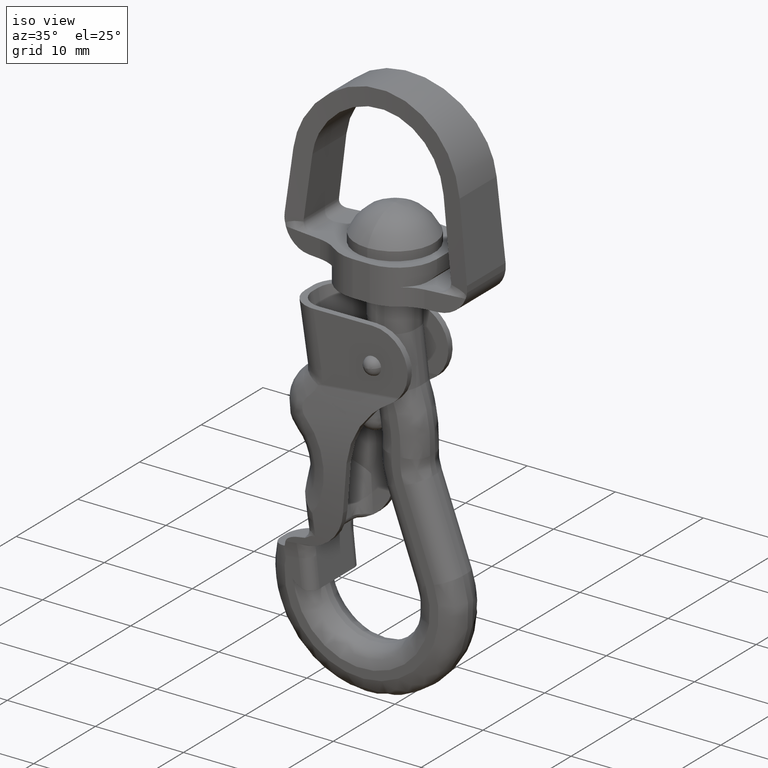
[diagram: clean part render]
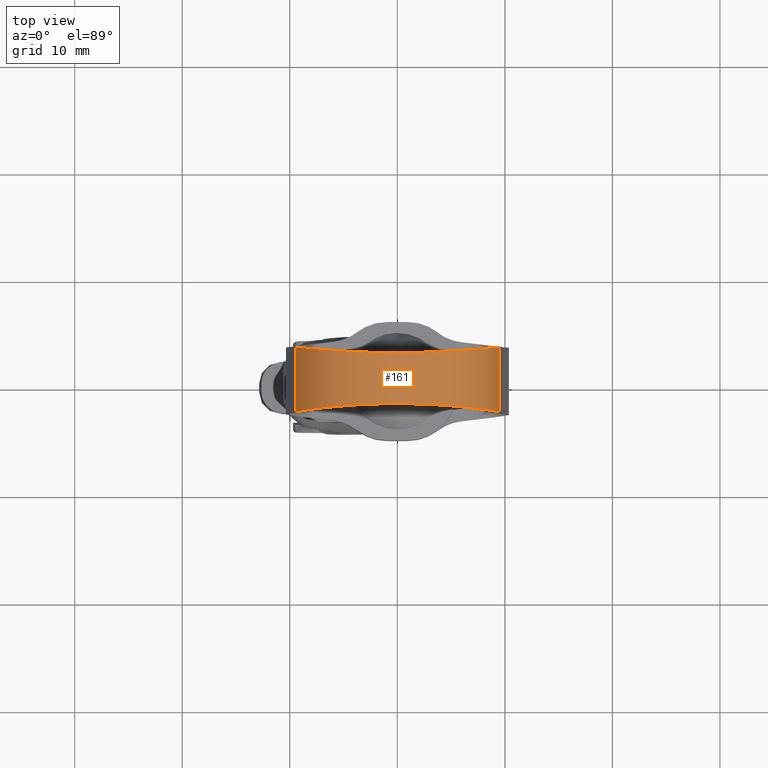
[diagram: tour spotlight — one face highlighted and labeled with its STEP entity id]
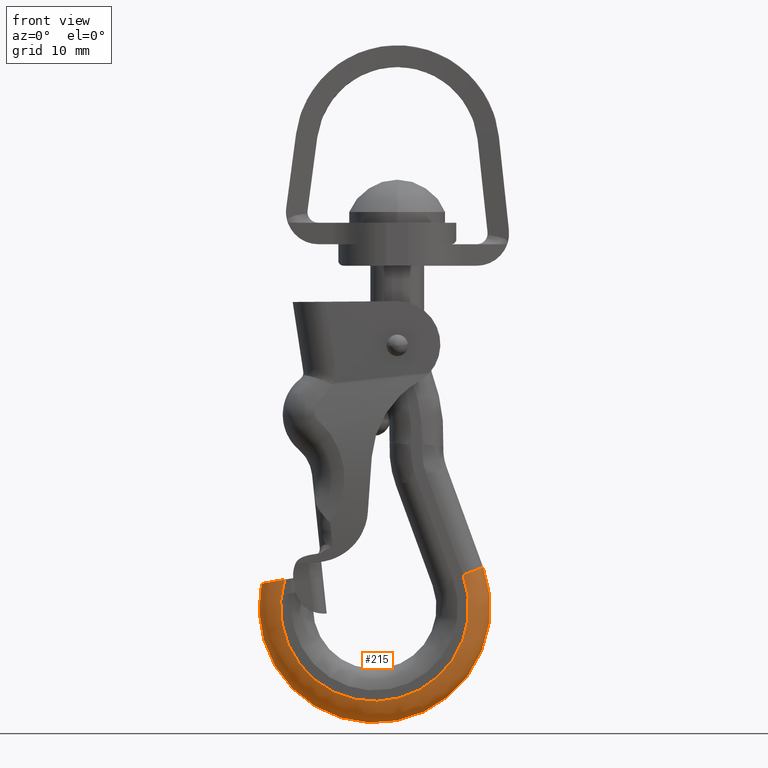
[diagram: tour spotlight — one face highlighted and labeled with its STEP entity id]
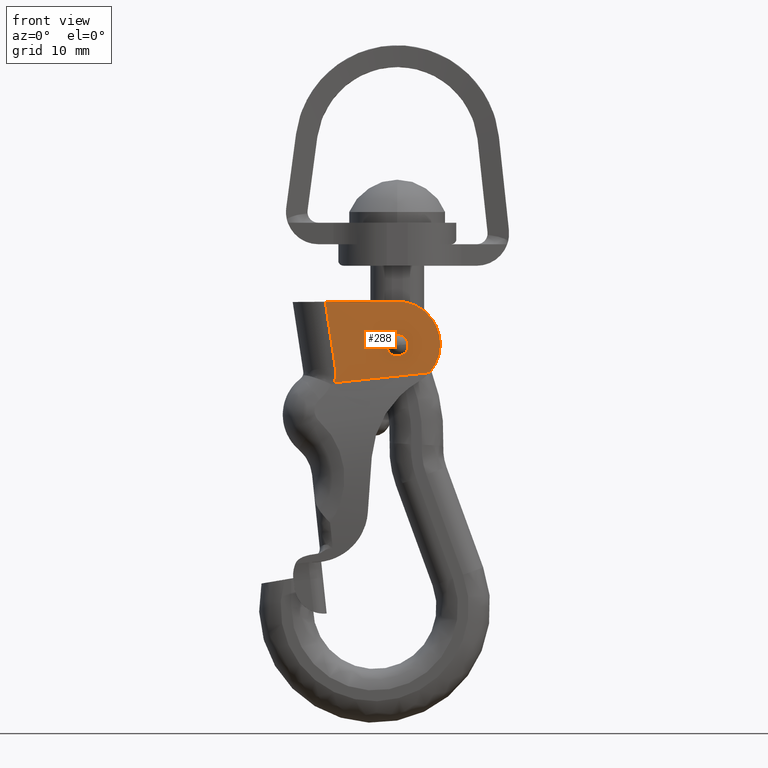
[diagram: tour spotlight — one face highlighted and labeled with its STEP entity id]
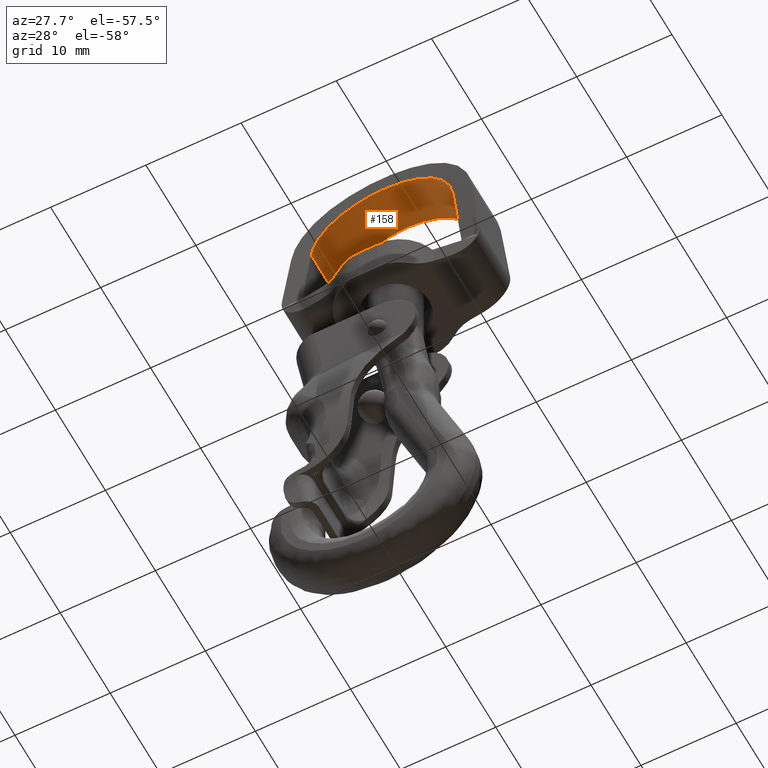
[diagram: tour spotlight — one face highlighted and labeled with its STEP entity id]
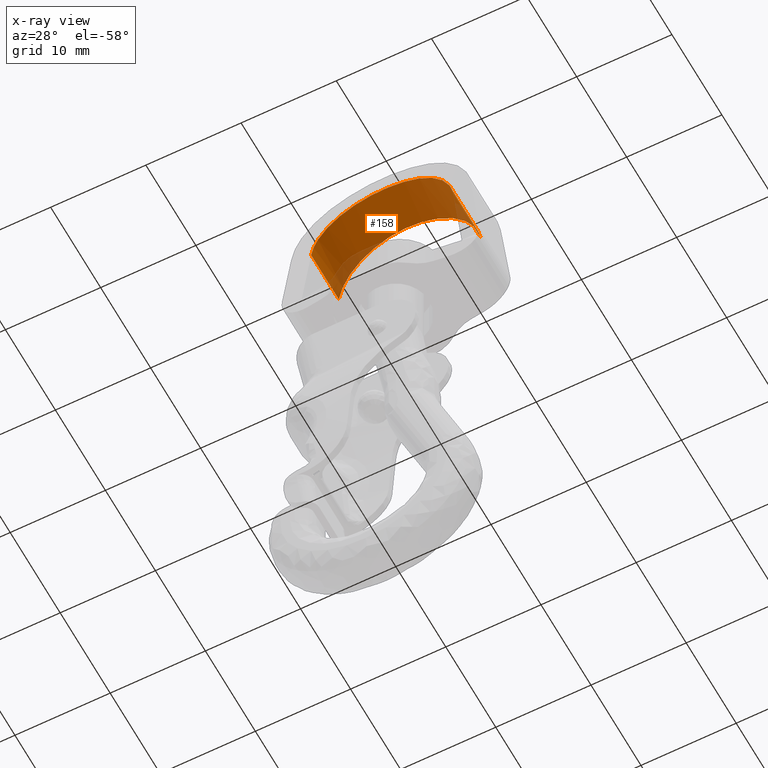
[diagram: x-ray of the same camera — body ghosted, this tour face saturated]
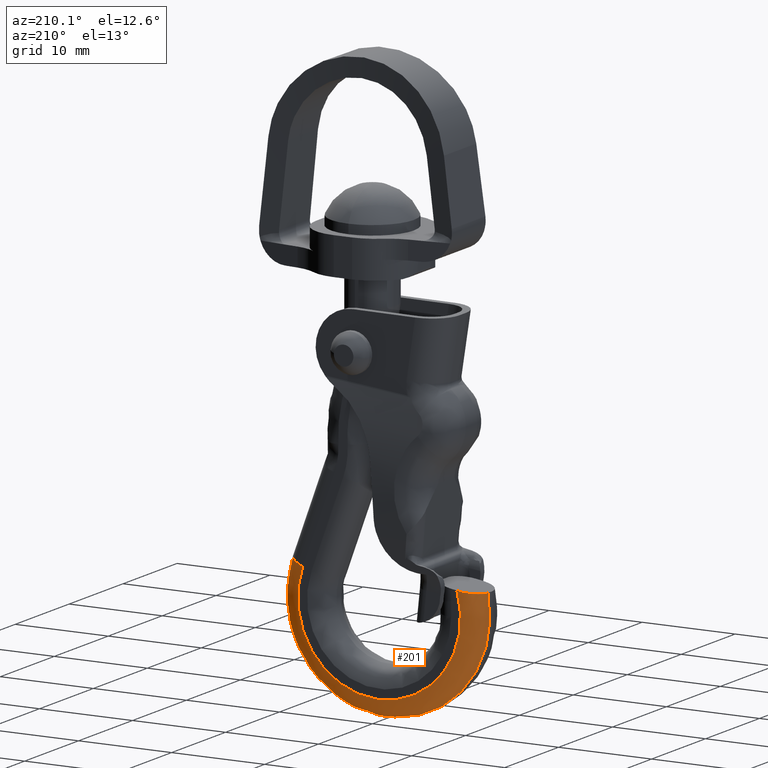
[diagram: tour spotlight — one face highlighted and labeled with its STEP entity id]
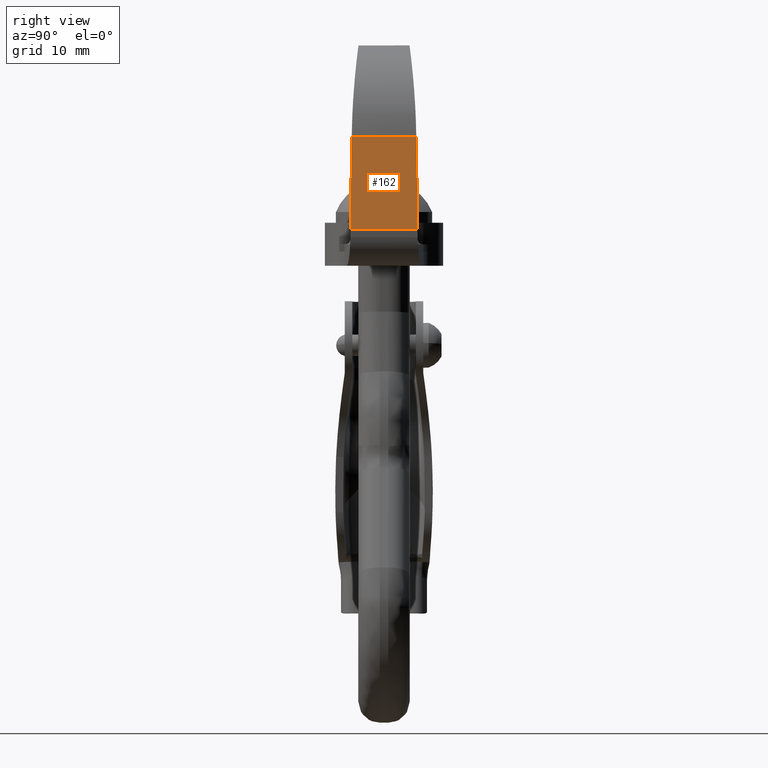
[diagram: tour spotlight — one face highlighted and labeled with its STEP entity id]
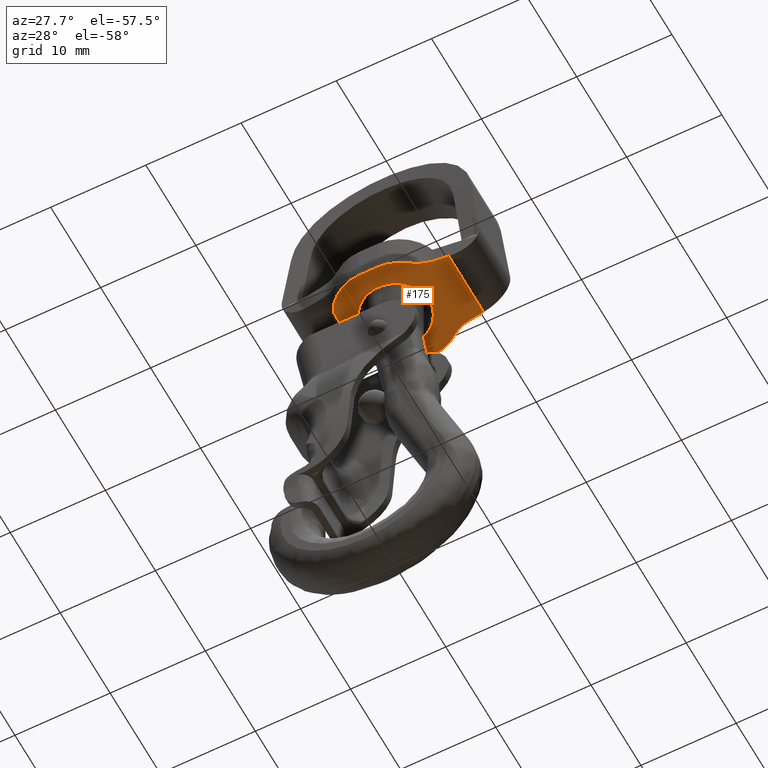
[diagram: tour spotlight — one face highlighted and labeled with its STEP entity id]
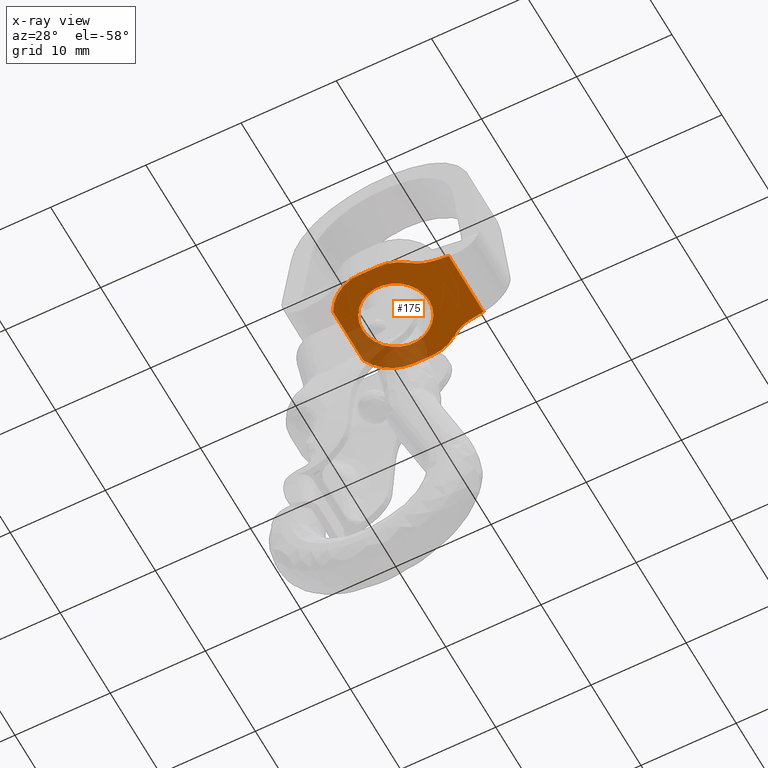
[diagram: x-ray of the same camera — body ghosted, this tour face saturated]
A machine part: a face-by-face anatomy tour. The part has 201 B-rep faces; the first image is the clean iso view, then the 7 largest visible faces are spotlighted one at a time (largest first), each with its STEP entity span.

Face 1 — top view, entity #161. In plain terms, the highlighted cylindrical surface (partial cylindrical patch) has radius 9.5 mm, axis along (-0, -1, -0).
Definition (entity closure, byte-faithful):
#161=ADVANCED_FACE('',(#471),#470,.T.);
#470=CYLINDRICAL_SURFACE('',#2463,9.50000000000E+00);
#471=FACE_OUTER_BOUND('',#2464,.T.);
#2460=CARTESIAN_POINT('',(1.70530256582E-13,-9.96370609615E+02,1.10000000000E+01));
#2461=DIRECTION('',(-0.00000000000E+00,-1.00000000000E+00,-0.00000000000E+00));
#2462=DIRECTION('',(-0.00000000000E+00,0.00000000000E+00,-1.00000000000E+00));
#2463=AXIS2_PLACEMENT_3D('',#2460,#2461,#2462);
#2464=EDGE_LOOP('',(#5614,#5615,#5616,#5617));
#5614=ORIENTED_EDGE('',*,*,#6655,.F.);
#5615=ORIENTED_EDGE('',*,*,#6687,.F.);
#5616=ORIENTED_EDGE('',*,*,#6688,.F.);
#5617=ORIENTED_EDGE('',*,*,#6689,.T.);
#6655=EDGE_CURVE('',#7363,#7370,#7371,.T.);
#6687=EDGE_CURVE('',#7586,#7363,#7587,.T.);
#6688=EDGE_CURVE('',#7593,#7586,#7594,.T.);
#6689=EDGE_CURVE('',#7593,#7370,#7600,.T.);
#7363=VERTEX_POINT('',#10973);
#7370=VERTEX_POINT('',#10977);
#7371=(BOUNDED_CURVE() B_SPLINE_CURVE(3,(#10978,#10979,#10980,#10981,#10982,#10983,#10984,#10985,#10986,#10987,#10988,#10989,#10990,#10991,#10992,#10993,#10994,#10995,#10996,#10997,#10998,#10999,#11000,#11001,#11002,#11003,#11004,#11005,#11006,#11007,#11008,#11009,#11010,#11011,#11012,#11013,#11014,#11015,#11016,#11017,#11018,#11019,#11020,#11021,#11022,#11023),.UNSPECIFIED.,.F.,.F.) B_SPLINE_CURVE_WITH_KNOTS((4,2,2,2,2,2,2,2,2,2,2,2,2,2,2,2,2,2,2,2,2,2,4),(0.00000000000E+00,1.71468884432E-03,2.57203326647E-03,3.42937768863E-03,5.14406653295E-03,6.00141095511E-03,6.85875537726E-03,7.71609979942E-03,8.57344422158E-03,1.02881330659E-02,1.20028219102E-02,1.37175107545E-02,1.45748551767E-02,1.54321995988E-02,1.71468884432E-02,1.88615772875E-02,1.97189217096E-02,2.05762661318E-02,2.22909549761E-02,2.40056438204E-02,2.48629882426E-02,2.57203326647E-02,2.74350215091E-02),.UNSPECIFIED.) CURVE() GEOMETRIC_REPRESENTATION_ITEM() RATIONAL_B_SPLINE_CURVE((1.00000000000E+00,1.00000000000E+00,1.00000000000E+00,1.00000000000E+00,1.00000000000E+00,1.00000000000E+00,1.00000000000E+00,1.00000000000E+00,1.00000000000E+00,1.00000000000E+00,1.00000000000E+00,1.00000000000E+00,1.00000000000E+00,1.00000000000E+00,1.00000000000E+00,1.00000000000E+00,1.00000000000E+00,1.00000000000E+00,1.00000000000E+00,1.00000000000E+00,1.00000000000E+00,1.00000000000E+00,1.00000000000E+00,1.00000000000E+00,1.00000000000E+00,1.00000000000E+00,1.00000000000E+00,1.00000000000E+00,1.00000000000E+00,1.00000000000E+00,1.00000000000E+00,1.00000000000E+00,1.00000000000E+00,1.00000000000E+00,1.00000000000E+00,1.00000000000E+00,1.00000000000E+00,1.00000000000E+00,1.00000000000E+00,1.00000000000E+00,1.00000000000E+00,1.00000000000E+00,1.00000000000E+00,1.00000000000E+00,1.00000000000E+00,1.00000000000E+00)) REPRESENTATION_ITEM('') );
#7586=VERTEX_POINT('',#11213);
#7587=LINE('',#11214,#11215);
#7593=VERTEX_POINT('',#11217);
#7594=(BOUNDED_CURVE() B_SPLINE_CURVE(3,(#11218,#11219,#11220,#11221,#11222,#11223,#11224,#11225,#11226,#11227,#11228,#11229,#11230,#11231,#11232,#11233,#11234,#11235,#11236,#11237,#11238,#11239,#11240,#11241,#11242,#11243,#11244,#11245,#11246,#11247,#11248,#11249,#11250,#11251,#11252,#11253,#11254,#11255,#11256,#11257,#11258,#11259,#11260,#11261),.UNSPECIFIED.,.F.,.F.) B_SPLINE_CURVE_WITH_KNOTS((4,2,2,2,2,2,2,2,2,2,2,2,2,2,2,2,2,2,2,2,2,4),(3.87895961445E-18,1.71469677414E-03,2.57204516121E-03,3.42939354828E-03,5.14409032241E-03,6.00143870948E-03,6.85878709655E-03,7.71613548362E-03,8.57348387069E-03,1.02881806448E-02,1.20028774190E-02,1.37175741931E-02,1.54322709672E-02,1.71469677414E-02,1.88616645155E-02,1.97190129026E-02,2.05763612897E-02,2.22910580638E-02,2.31484064509E-02,2.40057548379E-02,2.57204516121E-02,2.74351483862E-02),.UNSPECIFIED.) CURVE() GEOMETRIC_REPRESENTATION_ITEM() RATIONAL_B_SPLINE_CURVE((1.00000000000E+00,1.00000000000E+00,1.00000000000E+00,1.00000000000E+00,1.00000000000E+00,1.00000000000E+00,1.00000000000E+00,1.00000000000E+00,1.00000000000E+00,1.00000000000E+00,1.00000000000E+00,1.00000000000E+00,1.00000000000E+00,1.00000000000E+00,1.00000000000E+00,1.00000000000E+00,1.00000000000E+00,1.00000000000E+00,1.00000000000E+00,1.00000000000E+00,1.00000000000E+00,1.00000000000E+00,1.00000000000E+00,1.00000000000E+00,1.00000000000E+00,1.00000000000E+00,1.00000000000E+00,1.00000000000E+00,1.00000000000E+00,1.00000000000E+00,1.00000000000E+00,1.00000000000E+00,1.00000000000E+00,1.00000000000E+00,1.00000000000E+00,1.00000000000E+00,1.00000000000E+00,1.00000000000E+00,1.00000000000E+00,1.00000000000E+00,1.00000000000E+00,1.00000000000E+00,1.00000000000E+00,1.00000000000E+00)) REPRESENTATION_ITEM('') );
#7600=LINE('',#11262,#11263);
#10973=CARTESIAN_POINT('',(-9.41739461082E+00,2.99568752136E+00,1.22500714956E+01));
#10977=CARTESIAN_POINT('',(9.44589185730E+00,2.99949311255E+00,1.20124855655E+01));
#10978=CARTESIAN_POINT('',(-9.41739461082E+00,2.99568752136E+00,1.22500714956E+01));
#10979=CARTESIAN_POINT('',(-9.34110534533E+00,2.98551533350E+00,1.28247955176E+01));
#10980=CARTESIAN_POINT('',(-9.21386118481E+00,2.96862461537E+00,1.33834840825E+01));
#10981=CARTESIAN_POINT('',(-8.94990255391E+00,2.93487115063E+00,1.41985626228E+01));
#10982=CARTESIAN_POINT('',(-8.84965530253E+00,2.92221561368E+00,1.44664052478E+01));
#10983=CARTESIAN_POINT('',(-8.62427028081E+00,2.89436924000E+00,1.49942867247E+01));
#10984=CARTESIAN_POINT('',(-8.49840569904E+00,2.87909282235E+00,1.52556079053E+01));
#10985=CARTESIAN_POINT('',(-8.08791319733E+00,2.83058655183E+00,1.60167770919E+01));
#10986=CARTESIAN_POINT('',(-7.77207370907E+00,2.79484369708E+00,1.64927916658E+01));
#10987=CARTESIAN_POINT('',(-7.23680559954E+00,2.73883519680E+00,1.71611782331E+01));
#10988=CARTESIAN_POINT('',(-7.04806688455E+00,2.71976459158E+00,1.73763200296E+01));
#10989=CARTESIAN_POINT('',(-6.64946818580E+00,2.68127376269E+00,1.77909702382E+01));
#10990=CARTESIAN_POINT('',(-6.43911585116E+00,2.66181754312E+00,1.79907702253E+01));
#10991=CARTESIAN_POINT('',(-6.00344954213E+00,2.62363286604E+00,1.83682884636E+01));
#10992=CARTESIAN_POINT('',(-5.77743674028E+00,2.60483262476E+00,1.85468140530E+01));
#10993=CARTESIAN_POINT('',(-5.30899983134E+00,2.56827947831E+00,1.88833811546E+01));
#10994=CARTESIAN_POINT('',(-5.06588246233E+00,2.55048696783E+00,1.90417378128E+01));
#10995=CARTESIAN_POINT('',(-4.32228355595E+00,2.50009102409E+00,1.94793109125E+01));
#10996=CARTESIAN_POINT('',(-3.80492685682E+00,2.47022830642E+00,1.97236383529E+01));
#10997=CARTESIAN_POINT('',(-2.72713405487E+00,2.42077382056E+00,2.01182275879E+01));
#10998=CARTESIAN_POINT('',(-2.16317827642E+00,2.40121414050E+00,2.02681552911E+01));
#10999=CARTESIAN_POINT('',(-1.03401231894E+00,2.37587457819E+00,2.04609122858E+01));
#11000=CARTESIAN_POINT('',(-4.64074534652E-01,2.36979781455E+00,2.05060892360E+01));
#11001=CARTESIAN_POINT('',(3.98982624320E-01,2.37114589761E+00,2.04959774273E+01));
#11002=CARTESIAN_POINT('',(6.89180023793E-01,2.37336279496E+00,2.04793737485E+01));
#11003=CARTESIAN_POINT('',(1.26403092142E+00,2.38124247601E+00,2.04199639913E+01));
#11004=CARTESIAN_POINT('',(1.54922294418E+00,2.38689111829E+00,2.03772637598E+01));
#11005=CARTESIAN_POINT('',(2.39814266771E+00,2.40872724962E+00,2.02104061339E+01));
#11006=CARTESIAN_POINT('',(2.95689392893E+00,2.42998984163E+00,2.00462718540E+01));
#11007=CARTESIAN_POINT('',(4.02265301642E+00,2.48225006473E+00,1.96253416670E+01));
#11008=CARTESIAN_POINT('',(4.53410827301E+00,2.51332215674E+00,1.93680758066E+01));
#11009=CARTESIAN_POINT('',(5.26858081225E+00,2.56523559119E+00,1.89104528226E+01));
#11010=CARTESIAN_POINT('',(5.50707871021E+00,2.58337541053E+00,1.87462401045E+01));
#11011=CARTESIAN_POINT('',(5.96405504374E+00,2.62027955222E+00,1.84001485872E+01));
#11012=CARTESIAN_POINT('',(6.18367283417E+00,2.63912304649E+00,1.82175834577E+01));
#11013=CARTESIAN_POINT('',(6.81635219101E+00,2.69613214643E+00,1.76417336263E+01));
#11014=CARTESIAN_POINT('',(7.20373260446E+00,2.73481623689E+00,1.72201877684E+01));
#11015=CARTESIAN_POINT('',(7.90510272266E+00,2.80959812216E+00,1.63003632192E+01));
#11016=CARTESIAN_POINT('',(8.20888147478E+00,2.84456816264E+00,1.58156010388E+01));
#11017=CARTESIAN_POINT('',(8.59700647187E+00,2.89102135386E+00,1.50525198125E+01));
#11018=CARTESIAN_POINT('',(8.71505154974E+00,2.90550726101E+00,1.47921315561E+01));
#11019=CARTESIAN_POINT('',(8.92809308467E+00,2.93208744056E+00,1.42590702854E+01));
#11020=CARTESIAN_POINT('',(9.02341122469E+00,2.94422369348E+00,1.39852265495E+01));
#11021=CARTESIAN_POINT('',(9.27058067197E+00,2.97607168231E+00,1.31541691510E+01));
#11022=CARTESIAN_POINT('',(9.38409973902E+00,2.99122855471E+00,1.25889695044E+01));
#11023=CARTESIAN_POINT('',(9.44589185730E+00,2.99949311255E+00,1.20124855655E+01));
#11213=CARTESIAN_POINT('',(-9.41739461082E+00,-2.99568752136E+00,1.22500714956E+01));
#11214=CARTESIAN_POINT('',(-9.41739461082E+00,-2.99568752136E+00,1.22500714956E+01));
#11215=VECTOR('',#11216,5.99137504272E+00);
#11216=DIRECTION('',(0.00000000000E+00,1.00000000000E+00,0.00000000000E+00));
#11217=CARTESIAN_POINT('',(9.44589185730E+00,-2.99949311255E+00,1.20124855655E+01));
#11218=CARTESIAN_POINT('',(9.44589185730E+00,-2.99949311255E+00,1.20124855655E+01));
#11219=CARTESIAN_POINT('',(9.38409854350E+00,-2.99122839481E+00,1.25889806579E+01));
#11220=CARTESIAN_POINT('',(9.27095451925E+00,-2.97612667339E+00,1.31507462550E+01));
#11221=CARTESIAN_POINT('',(9.02756864112E+00,-2.94475606027E+00,1.39723023429E+01));
#11222=CARTESIAN_POINT('',(8.93408219273E+00,-2.93284484272E+00,1.42426165119E+01));
#11223=CARTESIAN_POINT('',(8.72202139631E+00,-2.90636728904E+00,1.47760732557E+01));
#11224=CARTESIAN_POINT('',(8.60275051337E+00,-2.89171778570E+00,1.50405191810E+01));
#11225=CARTESIAN_POINT('',(8.21149810901E+00,-2.84486391381E+00,1.58118338910E+01));
#11226=CARTESIAN_POINT('',(7.90770131654E+00,-2.80991372364E+00,1.62956772610E+01));
#11227=CARTESIAN_POINT('',(7.38936379228E+00,-2.75459008398E+00,1.69773562037E+01));
#11228=CARTESIAN_POINT('',(7.20607851535E+00,-2.73566377878E+00,1.71971886619E+01));
#11229=CARTESIAN_POINT('',(6.81799932357E+00,-2.69728674951E+00,1.76217520419E+01));
#11230=CARTESIAN_POINT('',(6.61271411788E+00,-2.67779902051E+00,1.78267835879E+01));
#11231=CARTESIAN_POINT('',(6.18698403539E+00,-2.63940563278E+00,1.82148590220E+01));
#11232=CARTESIAN_POINT('',(5.96582018205E+00,-2.62042468494E+00,1.83987738524E+01));
#11233=CARTESIAN_POINT('',(5.50690070120E+00,-2.58335845890E+00,1.87464126943E+01));
#11234=CARTESIAN_POINT('',(5.26822816113E+00,-2.56520944301E+00,1.89106874300E+01));
#11235=CARTESIAN_POINT('',(4.53375349421E+00,-2.51329952790E+00,1.93682670574E+01));
#11236=CARTESIAN_POINT('',(4.02229798037E+00,-2.48222999430E+00,1.96255066078E+01));
#11237=CARTESIAN_POINT('',(2.95653966126E+00,-2.42997513264E+00,2.00463870421E+01));
#11238=CARTESIAN_POINT('',(2.39671032461E+00,-2.40870176686E+00,2.02105975586E+01));
#11239=CARTESIAN_POINT('',(1.27055067206E+00,-2.37971170704E+00,2.04321274778E+01));
#11240=CARTESIAN_POINT('',(7.02085591931E-01,-2.37175772018E+00,2.04913880465E+01));
#11241=CARTESIAN_POINT('',(-4.45627296532E-01,-2.36969227253E+00,2.05068810627E+01));
#11242=CARTESIAN_POINT('',(-1.02735296259E+00,-2.37574774154E+00,2.04618722182E+01));
#11243=CARTESIAN_POINT('',(-2.16418850758E+00,-2.40121431743E+00,2.02681588294E+01));
#11244=CARTESIAN_POINT('',(-2.72749777531E+00,-2.42078773429E+00,2.01181194886E+01));
#11245=CARTESIAN_POINT('',(-3.80529504757E+00,-2.47024797829E+00,1.97234784761E+01));
#11246=CARTESIAN_POINT('',(-4.32265324731E+00,-2.50011348858E+00,1.94791235117E+01));
#11247=CARTESIAN_POINT('',(-5.06625253365E+00,-2.55051334543E+00,1.90415049537E+01));
#11248=CARTESIAN_POINT('',(-5.30957035138E+00,-2.56832465016E+00,1.88829621817E+01));
#11249=CARTESIAN_POINT('',(-5.77647142118E+00,-2.60475664643E+00,1.85475166773E+01));
#11250=CARTESIAN_POINT('',(-6.00097106505E+00,-2.62342973391E+00,1.83701941571E+01));
#11251=CARTESIAN_POINT('',(-6.64824193448E+00,-2.68011898212E+00,1.78100324324E+01));
#11252=CARTESIAN_POINT('',(-7.04500377367E+00,-2.71881371245E+00,1.73992355023E+01));
#11253=CARTESIAN_POINT('',(-7.58654822104E+00,-2.77540791294E+00,1.67251514728E+01));
#11254=CARTESIAN_POINT('',(-7.75744970893E+00,-2.79396971071E+00,1.64912806464E+01));
#11255=CARTESIAN_POINT('',(-8.07445834404E+00,-2.82940733396E+00,1.60135128976E+01));
#11256=CARTESIAN_POINT('',(-8.22146806432E+00,-2.84637694139E+00,1.57685298285E+01));
#11257=CARTESIAN_POINT('',(-8.62851762004E+00,-2.89445057104E+00,1.50155123102E+01));
#11258=CARTESIAN_POINT('',(-8.85492762900E+00,-2.92273613434E+00,1.44893938786E+01));
#11259=CARTESIAN_POINT('',(-9.21331185388E+00,-2.96854476046E+00,1.33875714938E+01));
#11260=CARTESIAN_POINT('',(-9.34110678463E+00,-2.98551552541E+00,1.28247846746E+01));
#11261=CARTESIAN_POINT('',(-9.41739461082E+00,-2.99568752136E+00,1.22500714956E+01));
#11262=CARTESIAN_POINT('',(9.44589185730E+00,-2.99949311255E+00,1.20124855655E+01));
#11263=VECTOR('',#11264,5.99898622511E+00);
#11264=DIRECTION('',(0.00000000000E+00,1.00000000000E+00,0.00000000000E+00));

Face 2 — front view, entity #215. In plain terms, the highlighted face is a freeform B-spline surface patch.
Definition (entity closure, byte-faithful):
#215=ADVANCED_FACE('',(#1013),#1012,.T.);
#1012=( BOUNDED_SURFACE() B_SPLINE_SURFACE( 2,2,((#2981,#2982,#2983,#2984,#2985,#2986,#2987,#2988,#2989),(#2990,#2991,#2992,#2993,#2994,#2995,#2996,#2997,#2998),(#2999,#3000,#3001,#3002,#3003,#3004,#3005,#3006,#3007),(#3008,#3009,#3010,#3011,#3012,#3013,#3014,#3015,#3016),(#3017,#3018,#3019,#3020,#3021,#3022,#3023,#3024,#3025)), .UNSPECIFIED.,.F.,.F.,.F.) B_SPLINE_SURFACE_WITH_KNOTS((3,2,3),(3,2,2,2,3),(-1.57079759117E+00,-1.04707379885E+00,3.71257042375E-04),(1.23993616211E+00,1.57079632679E+00,3.14159265359E+00,4.71238898038E+00,5.06165581110E+00), .UNSPECIFIED. ) GEOMETRIC_REPRESENTATION_ITEM() RATIONAL_B_SPLINE_SURFACE(((8.42112599181E-01,8.75423577591E-01,9.32981760490E-01,6.59717729566E-01,9.32981760490E-01,6.59717729566E-01,9.32981760490E-01,8.72221456686E-01,8.38481280675E-01),(8.42112453143E-01,8.75423425777E-01,9.32981598694E-01,6.59717615159E-01,9.32981598694E-01,6.59717615159E-01,9.32981598694E-01,8.72221305427E-01,8.38481135267E-01),(9.02603496491E-01,9.38307279588E-01,1.00000000000E+00,7.07106781187E-01,1.00000000000E+00,7.07106781187E-01,1.00000000000E+00,9.34875142926E-01,8.98711331971E-01),(7.81621701870E-01,8.12539875593E-01,8.65963520979E-01,6.12328677945E-01,8.65963520979E-01,6.12328677945E-01,8.65963520979E-01,8.09567770445E-01,7.78251229378E-01),(9.02603496491E-01,9.38307279588E-01,1.00000000000E+00,7.07106781187E-01,1.00000000000E+00,7.07106781187E-01,1.00000000000E+00,9.34875142926E-01,8.98711331971E-01))) REPRESENTATION_ITEM('') SURFACE() );
#1013=FACE_OUTER_BOUND('',#3026,.T.);
#2981=CARTESIAN_POINT('',(-1.04729732314E+01,-2.40000000000E+00,-3.31860748540E+01));
#2982=CARTESIAN_POINT('',(-1.08799502283E+01,-2.40000000000E+00,-3.45140153543E+01));
#2983=CARTESIAN_POINT('',(-1.08557104991E+01,-2.40000000000E+00,-3.59027085112E+01));
#2984=CARTESIAN_POINT('',(-1.07030019879E+01,-2.40000000000E+00,-4.46513732560E+01));
#2985=CARTESIAN_POINT('',(-1.95433724307E+00,-2.40000000000E+00,-4.44986647448E+01));
#2986=CARTESIAN_POINT('',(6.79432750177E+00,-2.40000000000E+00,-4.43459562337E+01));
#2987=CARTESIAN_POINT('',(6.64161899061E+00,-2.40000000000E+00,-3.55972914888E+01));
#2988=CARTESIAN_POINT('',(6.61593679800E+00,-2.40000000000E+00,-3.41259596592E+01));
#2989=CARTESIAN_POINT('',(6.11038889399E+00,-2.40000000000E+00,-3.27439689773E+01));
#2990=CARTESIAN_POINT('',(-1.09854771864E+01,-2.40000069367E+00,-3.30290065814E+01));
#2991=CARTESIAN_POINT('',(-1.14173859462E+01,-2.40000069367E+00,-3.44382978656E+01));
#2992=CARTESIAN_POINT('',(-1.13916612702E+01,-2.40000069367E+00,-3.59120635667E+01));
#2993=CARTESIAN_POINT('',(-1.12295977035E+01,-2.40000069367E+00,-4.51966790826E+01));
#2994=CARTESIAN_POINT('',(-1.94498218756E+00,-2.40000069367E+00,-4.50346155160E+01));
#2995=CARTESIAN_POINT('',(7.33963332842E+00,-2.40000069367E+00,-4.48725519493E+01));
#2996=CARTESIAN_POINT('',(7.17756976175E+00,-2.40000069367E+00,-3.55879364333E+01));
#2997=CARTESIAN_POINT('',(7.15031425580E+00,-2.40000069367E+00,-3.40264695429E+01));
#2998=CARTESIAN_POINT('',(6.61379604982E+00,-2.40000069367E+00,-3.25598169162E+01));
#2999=CARTESIAN_POINT('',(-1.14292869157E+01,-2.13192704196E+00,-3.28929911870E+01));
#3000=CARTESIAN_POINT('',(-1.18827856728E+01,-2.13192704196E+00,-3.43727292825E+01));
#3001=CARTESIAN_POINT('',(-1.18557750870E+01,-2.13192704196E+00,-3.59201647035E+01));
#3002=CARTESIAN_POINT('',(-1.16856103836E+01,-2.13192704196E+00,-4.56688940363E+01));
#3003=CARTESIAN_POINT('',(-1.93688105075E+00,-2.13192704196E+00,-4.54987293328E+01));
#3004=CARTESIAN_POINT('',(7.81184828207E+00,-2.13192704196E+00,-4.53285646294E+01));
#3005=CARTESIAN_POINT('',(7.64168357860E+00,-2.13192704196E+00,-3.55798352965E+01));
#3006=CARTESIAN_POINT('',(7.61306564069E+00,-2.13192704196E+00,-3.39403147315E+01));
#3007=CARTESIAN_POINT('',(7.04972828297E+00,-2.13192704196E+00,-3.24003479490E+01));
#3008=CARTESIAN_POINT('',(-1.23855981256E+01,-1.55428797455E+00,-3.25999082784E+01));
#3009=CARTESIAN_POINT('',(-1.28856185224E+01,-1.55428797455E+00,-3.42314435763E+01));
#3010=CARTESIAN_POINT('',(-1.28558370873E+01,-1.55428797455E+00,-3.59376208506E+01));
#3011=CARTESIAN_POINT('',(-1.26682162366E+01,-1.55428797455E+00,-4.66864121837E+01));
#3012=CARTESIAN_POINT('',(-1.91942490361E+00,-1.55428797455E+00,-4.64987913330E+01));
#3013=CARTESIAN_POINT('',(8.82936642943E+00,-1.55428797455E+00,-4.63111704824E+01));
#3014=CARTESIAN_POINT('',(8.64174557881E+00,-1.55428797455E+00,-3.55623791494E+01));
#3015=CARTESIAN_POINT('',(8.61019190319E+00,-1.55428797455E+00,-3.37546702841E+01));
#3016=CARTESIAN_POINT('',(7.98906524130E+00,-1.55428797455E+00,-3.20567278098E+01));
#3017=CARTESIAN_POINT('',(-1.23851881345E+01,-3.99257485932E-01,-3.26000339293E+01));
#3018=CARTESIAN_POINT('',(-1.28851885865E+01,-3.99257485932E-01,-3.42315041485E+01));
#3019=CARTESIAN_POINT('',(-1.28554083393E+01,-3.99257485932E-01,-3.59376133668E+01));
#3020=CARTESIAN_POINT('',(-1.26677949725E+01,-3.99257485932E-01,-4.66859759519E+01));
#3021=CARTESIAN_POINT('',(-1.91943238743E+00,-3.99257485932E-01,-4.64983625851E+01));
#3022=CARTESIAN_POINT('',(8.82893019769E+00,-3.99257485932E-01,-4.63107492183E+01));
#3023=CARTESIAN_POINT('',(8.64131683090E+00,-3.99257485932E-01,-3.55623866332E+01));
#3024=CARTESIAN_POINT('',(8.60976441390E+00,-3.99257485932E-01,-3.37547498738E+01));
#3025=CARTESIAN_POINT('',(7.98866252751E+00,-3.99257485932E-01,-3.20568751271E+01));
#3026=EDGE_LOOP('',(#5894,#5895,#5896,#5897));
#5894=ORIENTED_EDGE('',*,*,#6793,.F.);
#5895=ORIENTED_EDGE('',*,*,#6837,.F.);
#5896=ORIENTED_EDGE('',*,*,#6834,.F.);
#5897=ORIENTED_EDGE('',*,*,#6838,.F.);
#6793=EDGE_CURVE('',#8284,#8291,#8292,.T.);
#6834=EDGE_CURVE('',#8562,#8563,#8564,.T.);
#6837=EDGE_CURVE('',#8563,#8284,#8582,.T.);
#6838=EDGE_CURVE('',#8291,#8562,#8588,.T.);
#8284=VERTEX_POINT('',#11769);
#8291=VERTEX_POINT('',#11773);
#8292=(BOUNDED_CURVE() B_SPLINE_CURVE(3,(#11774,#11775,#11776,#11777,#11778,#11779,#11780,#11781,#11782,#11783,#11784,#11785,#11786,#11787,#11788,#11789),.UNSPECIFIED.,.F.,.F.) B_SPLINE_CURVE_WITH_KNOTS((4,2,2,2,2,2,2,4),(2.71050543121E-19,4.09679810494E-04,8.19359620987E-04,1.63871924197E-03,2.04839905247E-03,2.45807886296E-03,2.86775867346E-03,3.27743848395E-03),.UNSPECIFIED.) CURVE() GEOMETRIC_REPRESENTATION_ITEM() RATIONAL_B_SPLINE_CURVE((1.00000000000E+00,1.00000000000E+00,1.00000000000E+00,1.00000000000E+00,1.00000000000E+00,1.00000000000E+00,1.00000000000E+00,1.00000000000E+00,1.00000000000E+00,1.00000000000E+00,1.00000000000E+00,1.00000000000E+00,1.00000000000E+00,1.00000000000E+00,1.00000000000E+00,1.00000000000E+00)) REPRESENTATION_ITEM('') );
#8562=VERTEX_POINT('',#11982);
#8563=VERTEX_POINT('',#11983);
#8564=CIRCLE('',#11987,2.00000000000E+00);
#8582=CIRCLE('',#11997,1.07500000000E+01);
#8588=CIRCLE('',#12001,8.75000000000E+00);
#11769=CARTESIAN_POINT('',(-1.26295216986E+01,-4.00000000000E-01,-3.35500000000E+01));
#11773=CARTESIAN_POINT('',(-1.04729762848E+01,-2.40000000000E+00,-3.31860759843E+01));
#11774=CARTESIAN_POINT('',(-1.26295216986E+01,-4.00000000000E-01,-3.35500000000E+01));
#11775=CARTESIAN_POINT('',(-1.26295216986E+01,-5.38579709962E-01,-3.35500000000E+01));
#11776=CARTESIAN_POINT('',(-1.26144383871E+01,-6.74518843715E-01,-3.35474546424E+01));
#11777=CARTESIAN_POINT('',(-1.25555257313E+01,-9.41364655964E-01,-3.35375129411E+01));
#11778=CARTESIAN_POINT('',(-1.25108583212E+01,-1.07357253150E+00,-3.35299751711E+01));
#11779=CARTESIAN_POINT('',(-1.23390396610E+01,-1.44574021178E+00,-3.35009802164E+01));
#11780=CARTESIAN_POINT('',(-1.21705125642E+01,-1.66923326838E+00,-3.34725407235E+01));
#11781=CARTESIAN_POINT('',(-1.18662914595E+01,-1.93966913821E+00,-3.34212024278E+01));
#11782=CARTESIAN_POINT('',(-1.17547488737E+01,-2.02059040415E+00,-3.34023792556E+01));
#11783=CARTESIAN_POINT('',(-1.15205169823E+01,-2.15854689235E+00,-3.33628518661E+01));
#11784=CARTESIAN_POINT('',(-1.13981191962E+01,-2.21579724842E+00,-3.33421968437E+01));
#11785=CARTESIAN_POINT('',(-1.11433124445E+01,-2.30806896807E+00,-3.32991973800E+01));
#11786=CARTESIAN_POINT('',(-1.10105433038E+01,-2.34290430568E+00,-3.32767921580E+01));
#11787=CARTESIAN_POINT('',(-1.07440822197E+01,-2.38863360214E+00,-3.32318259879E+01));
#11788=CARTESIAN_POINT('',(-1.06092974532E+01,-2.40000000000E+00,-3.32090806225E+01));
#11789=CARTESIAN_POINT('',(-1.04729762848E+01,-2.40000000000E+00,-3.31860759843E+01));
#11982=CARTESIAN_POINT('',(6.11039132464E+00,-2.40000000000E+00,-3.27439680882E+01));
#11983=CARTESIAN_POINT('',(7.98866265695E+00,-4.00000000000E-01,-3.20568750798E+01));
#11984=CARTESIAN_POINT('',(6.11039132464E+00,-4.00000000000E-01,-3.27439680882E+01));
#11985=DIRECTION('',(-3.43546504209E-01,0.00000000000E+00,9.39135666156E-01));
#11986=DIRECTION('',(-9.39135666156E-01,-0.00000000000E+00,-3.43546504209E-01));
#11987=AXIS2_PLACEMENT_3D('',#11984,#11985,#11986);
#11994=CARTESIAN_POINT('',(-2.10704575422E+00,-4.00000000000E-01,-3.57500000000E+01));
#11995=DIRECTION('',(-0.00000000000E+00,1.00000000000E+00,0.00000000000E+00));
#11996=DIRECTION('',(9.39135666156E-01,0.00000000000E+00,3.43546504209E-01));
#11997=AXIS2_PLACEMENT_3D('',#11994,#11995,#11996);
#11998=CARTESIAN_POINT('',(-2.10704575422E+00,-2.40000000000E+00,-3.57500000000E+01));
#11999=DIRECTION('',(0.00000000000E+00,-1.00000000000E+00,0.00000000000E+00));
#12000=DIRECTION('',(9.39135666156E-01,0.00000000000E+00,3.43546504209E-01));
#12001=AXIS2_PLACEMENT_3D('',#11998,#11999,#12000);

Face 3 — front view, entity #288. In plain terms, the highlighted planar face has unit normal (-0, -1, 0).
Definition (entity closure, byte-faithful):
#288=ADVANCED_FACE('',(#1746,#1747),#1745,.T.);
#1745=PLANE('',#4376);
#1746=FACE_OUTER_BOUND('',#4377,.T.);
#1747=FACE_BOUND('',#4378,.T.);
#4373=CARTESIAN_POINT('',(-7.32479059983E+00,-3.65000000000E+00,5.48596723690E+00));
#4374=DIRECTION('',(0.00000000000E+00,-1.00000000000E+00,2.38402089761E-13));
#4375=DIRECTION('',(0.00000000000E+00,-2.38402089761E-13,-1.00000000000E+00));
#4376=AXIS2_PLACEMENT_3D('',#4373,#4374,#4375);
#4377=EDGE_LOOP('',(#6291,#6292,#6293,#6294,#6295));
#4378=EDGE_LOOP('',(#6296,#6297,#6298));
#6291=ORIENTED_EDGE('',*,*,#7064,.F.);
#6292=ORIENTED_EDGE('',*,*,#7065,.T.);
#6293=ORIENTED_EDGE('',*,*,#7066,.T.);
#6294=ORIENTED_EDGE('',*,*,#7024,.T.);
#6295=ORIENTED_EDGE('',*,*,#7067,.T.);
#6296=ORIENTED_EDGE('',*,*,#7068,.F.);
#6297=ORIENTED_EDGE('',*,*,#7069,.F.);
#6298=ORIENTED_EDGE('',*,*,#7070,.F.);
#7024=EDGE_CURVE('',#9832,#9833,#9834,.T.);
#7064=EDGE_CURVE('',#10098,#10099,#10100,.T.);
#7065=EDGE_CURVE('',#10098,#10106,#10107,.T.);
#7066=EDGE_CURVE('',#10106,#9832,#10113,.T.);
#7067=EDGE_CURVE('',#9833,#10099,#10119,.T.);
#7068=EDGE_CURVE('',#10125,#10126,#10127,.T.);
#7069=EDGE_CURVE('',#10133,#10125,#10134,.T.);
#7070=EDGE_CURVE('',#10126,#10133,#10140,.T.);
#9832=VERTEX_POINT('',#13166);
#9833=VERTEX_POINT('',#13167);
#9834=LINE('',#13168,#13169);
#10098=VERTEX_POINT('',#13434);
#10099=VERTEX_POINT('',#13435);
#10100=LINE('',#13436,#13437);
#10106=VERTEX_POINT('',#13439);
#10107=LINE('',#13440,#13441);
#10113=(BOUNDED_CURVE() B_SPLINE_CURVE(2,(#13443,#13444,#13445),.UNSPECIFIED.,.F.,.F.) B_SPLINE_CURVE_WITH_KNOTS((3,3),(0.00000000000E+00,1.00000000000E+00),.UNSPECIFIED.) CURVE() GEOMETRIC_REPRESENTATION_ITEM() RATIONAL_B_SPLINE_CURVE((1.00000000000E+00,1.00000000000E+00,1.00000000000E+00)) REPRESENTATION_ITEM('') );
#10119=CIRCLE('',#13449,4.00000000000E+00);
#10125=VERTEX_POINT('',#13450);
#10126=VERTEX_POINT('',#13451);
#10127=CIRCLE('',#13455,1.00000000000E+00);
#10133=VERTEX_POINT('',#13456);
#10134=CIRCLE('',#13460,1.00000000000E+00);
#10140=CIRCLE('',#13464,1.00000000000E+00);
#13166=CARTESIAN_POINT('',(-6.18553665017E+00,-3.65000000000E+00,-2.83971034719E+00));
#13167=CARTESIAN_POINT('',(2.72282086688E+00,-3.65000000000E+00,-2.83971034719E+00));
#13168=CARTESIAN_POINT('',(-6.18553665017E+00,-3.65000000000E+00,-2.83971034719E+00));
#13169=VECTOR('',#13170,8.90835751704E+00);
#13170=DIRECTION('',(1.00000000000E+00,0.00000000000E+00,0.00000000000E+00));
#13434=CARTESIAN_POINT('',(-6.23832732700E+00,-3.65000000000E+00,4.72908745652E+00));
#13435=CARTESIAN_POINT('',(3.98721437456E-01,-3.65000000000E+00,4.08056628611E+00));
#13436=CARTESIAN_POINT('',(-6.23832732700E+00,-3.65000000000E+00,4.72908745652E+00));
#13437=VECTOR('',#13438,6.66865773677E+00);
#13438=DIRECTION('',(9.95260069782E-01,-2.31745354355E-14,-9.72491310867E-02));
#13439=CARTESIAN_POINT('',(-5.95439477423E+00,-3.65000000000E+00,-1.36964851041E+00));
#13440=CARTESIAN_POINT('',(-6.23832732700E+00,-3.65000000000E+00,4.72908745652E+00));
#13441=VECTOR('',#13442,6.10534176675E+00);
#13442=DIRECTION('',(4.65055952010E-02,-2.38143600898E-13,-9.98918029477E-01));
#13443=CARTESIAN_POINT('',(-5.95439477423E+00,-3.65000000000E+00,-1.36964851041E+00));
#13444=CARTESIAN_POINT('',(-5.91907012449E+00,-3.65000000000E+00,-2.12840515811E+00));
#13445=CARTESIAN_POINT('',(-6.18553665017E+00,-3.65000000000E+00,-2.83971034719E+00));
#13446=CARTESIAN_POINT('',(9.72491310870E-03,-3.65000000000E+00,9.95260069793E-02));
#13447=DIRECTION('',(0.00000000000E+00,-1.00000000000E+00,2.38402089761E-13));
#13448=DIRECTION('',(-0.00000000000E+00,2.38402089761E-13,1.00000000000E+00));
#13449=AXIS2_PLACEMENT_3D('',#13446,#13447,#13448);
#13450=CARTESIAN_POINT('',(-1.00000000000E+00,-3.65000000000E+00,-3.48598960937E-11));
#13451=CARTESIAN_POINT('',(0.00000000000E+00,-3.65000000000E+00,-1.00000000000E+00));
#13452=CARTESIAN_POINT('',(0.00000000000E+00,-3.65000000000E+00,-4.44089209850E-16));
#13453=DIRECTION('',(0.00000000000E+00,-1.00000000000E+00,2.38402089761E-13));
#13454=DIRECTION('',(-1.22460635382E-16,-2.38402089761E-13,-1.00000000000E+00));
#13455=AXIS2_PLACEMENT_3D('',#13452,#13453,#13454);
#13456=CARTESIAN_POINT('',(9.99999994616E-01,-3.65000000000E+00,1.03768803010E-04));
#13457=CARTESIAN_POINT('',(0.00000000000E+00,-3.65000000000E+00,-4.44089209850E-16));
#13458=DIRECTION('',(0.00000000000E+00,-1.00000000000E+00,2.38402089761E-13));
#13459=DIRECTION('',(-1.22460635382E-16,-2.38402089761E-13,-1.00000000000E+00));
#13460=AXIS2_PLACEMENT_3D('',#13457,#13458,#13459);
#13461=CARTESIAN_POINT('',(0.00000000000E+00,-3.65000000000E+00,-4.44089209850E-16));
#13462=DIRECTION('',(0.00000000000E+00,-1.00000000000E+00,2.38402089761E-13));
#13463=DIRECTION('',(-1.22460635382E-16,-2.38402089761E-13,-1.00000000000E+00));
#13464=AXIS2_PLACEMENT_3D('',#13461,#13462,#13463);

Face 4 — auxiliary view, entity #158. An x-ray twin of the same camera follows (body ghosted, this face saturated) — the face is partly hidden behind the body. In plain terms, the highlighted cylindrical surface (partial cylindrical patch) has radius 7.5 mm, axis along (-0, -1, -0).
Definition (entity closure, byte-faithful):
#158=ADVANCED_FACE('',(#441),#440,.F.);
#440=CYLINDRICAL_SURFACE('',#2448,7.50000000000E+00);
#441=FACE_OUTER_BOUND('',#2449,.T.);
#2445=CARTESIAN_POINT('',(1.70530256582E-13,-9.96370609615E+02,1.10000000000E+01));
#2446=DIRECTION('',(-0.00000000000E+00,-1.00000000000E+00,-0.00000000000E+00));
#2447=DIRECTION('',(-0.00000000000E+00,0.00000000000E+00,-1.00000000000E+00));
#2448=AXIS2_PLACEMENT_3D('',#2445,#2446,#2447);
#2449=EDGE_LOOP('',(#5601,#5602,#5603,#5604));
#5601=ORIENTED_EDGE('',*,*,#6679,.T.);
#5602=ORIENTED_EDGE('',*,*,#6649,.T.);
#5603=ORIENTED_EDGE('',*,*,#6680,.F.);
#5604=ORIENTED_EDGE('',*,*,#6681,.T.);
#6649=EDGE_CURVE('',#7328,#7321,#7329,.T.);
#6679=EDGE_CURVE('',#7533,#7328,#7534,.T.);
#6680=EDGE_CURVE('',#7540,#7321,#7541,.T.);
#6681=EDGE_CURVE('',#7540,#7533,#7547,.T.);
#7321=VERTEX_POINT('',#10901);
#7328=VERTEX_POINT('',#10905);
#7329=(BOUNDED_CURVE() B_SPLINE_CURVE(3,(#10906,#10907,#10908,#10909,#10910,#10911,#10912,#10913,#10914,#10915,#10916,#10917,#10918,#10919,#10920,#10921,#10922,#10923,#10924,#10925,#10926,#10927,#10928,#10929,#10930,#10931,#10932,#10933,#10934,#10935,#10936,#10937,#10938,#10939,#10940,#10941,#10942,#10943,#10944,#10945,#10946,#10947),.UNSPECIFIED.,.F.,.F.) B_SPLINE_CURVE_WITH_KNOTS((4,2,2,2,2,2,2,2,2,2,2,2,2,2,2,2,2,2,2,2,4),(1.09799226145E-17,1.35495039208E-03,2.03242558812E-03,2.70990078416E-03,4.06485117624E-03,4.74232637228E-03,5.41980156832E-03,6.77475196040E-03,8.12970235248E-03,9.48465274457E-03,1.01621279406E-02,1.08396031366E-02,1.21945535287E-02,1.28720287248E-02,1.35495039208E-02,1.49044543129E-02,1.62594047050E-02,1.76143550971E-02,1.89693054891E-02,2.03242558812E-02,2.16792062733E-02),.UNSPECIFIED.) CURVE() GEOMETRIC_REPRESENTATION_ITEM() RATIONAL_B_SPLINE_CURVE((1.00000000000E+00,1.00000000000E+00,1.00000000000E+00,1.00000000000E+00,1.00000000000E+00,1.00000000000E+00,1.00000000000E+00,1.00000000000E+00,1.00000000000E+00,1.00000000000E+00,1.00000000000E+00,1.00000000000E+00,1.00000000000E+00,1.00000000000E+00,1.00000000000E+00,1.00000000000E+00,1.00000000000E+00,1.00000000000E+00,1.00000000000E+00,1.00000000000E+00,1.00000000000E+00,1.00000000000E+00,1.00000000000E+00,1.00000000000E+00,1.00000000000E+00,1.00000000000E+00,1.00000000000E+00,1.00000000000E+00,1.00000000000E+00,1.00000000000E+00,1.00000000000E+00,1.00000000000E+00,1.00000000000E+00,1.00000000000E+00,1.00000000000E+00,1.00000000000E+00,1.00000000000E+00,1.00000000000E+00,1.00000000000E+00,1.00000000000E+00,1.00000000000E+00,1.00000000000E+00)) REPRESENTATION_ITEM('') );
#7533=VERTEX_POINT('',#11149);
#7534=LINE('',#11150,#11151);
#7540=VERTEX_POINT('',#11153);
#7541=LINE('',#11154,#11155);
#7547=(BOUNDED_CURVE() B_SPLINE_CURVE(3,(#11157,#11158,#11159,#11160,#11161,#11162,#11163,#11164,#11165,#11166,#11167,#11168,#11169,#11170,#11171,#11172,#11173,#11174,#11175,#11176,#11177,#11178,#11179,#11180,#11181,#11182,#11183,#11184,#11185,#11186,#11187,#11188,#11189,#11190,#11191,#11192,#11193,#11194),.UNSPECIFIED.,.F.,.F.) B_SPLINE_CURVE_WITH_KNOTS((4,2,2,2,2,2,2,2,2,2,2,2,2,2,2,2,2,2,4),(0.00000000000E+00,1.35495995066E-03,2.03243992599E-03,2.70991990132E-03,4.06487985198E-03,4.74235982731E-03,5.41983980264E-03,6.77479975330E-03,8.12975970396E-03,9.48471965462E-03,1.08396796053E-02,1.35495995066E-02,1.49045594573E-02,1.62595194079E-02,1.76144793586E-02,1.89694393092E-02,1.96469192846E-02,2.03243992599E-02,2.16793592106E-02),.UNSPECIFIED.) CURVE() GEOMETRIC_REPRESENTATION_ITEM() RATIONAL_B_SPLINE_CURVE((1.00000000000E+00,1.00000000000E+00,1.00000000000E+00,1.00000000000E+00,1.00000000000E+00,1.00000000000E+00,1.00000000000E+00,1.00000000000E+00,1.00000000000E+00,1.00000000000E+00,1.00000000000E+00,1.00000000000E+00,1.00000000000E+00,1.00000000000E+00,1.00000000000E+00,1.00000000000E+00,1.00000000000E+00,1.00000000000E+00,1.00000000000E+00,1.00000000000E+00,1.00000000000E+00,1.00000000000E+00,1.00000000000E+00,1.00000000000E+00,1.00000000000E+00,1.00000000000E+00,1.00000000000E+00,1.00000000000E+00,1.00000000000E+00,1.00000000000E+00,1.00000000000E+00,1.00000000000E+00,1.00000000000E+00,1.00000000000E+00,1.00000000000E+00,1.00000000000E+00,1.00000000000E+00,1.00000000000E+00)) REPRESENTATION_ITEM('') );
#10901=CARTESIAN_POINT('',(7.45728304523E+00,2.76191776736E+00,1.17993307096E+01));
#10905=CARTESIAN_POINT('',(-7.43478521907E+00,2.75955378937E+00,1.19868985492E+01));
#10906=CARTESIAN_POINT('',(-7.43478521907E+00,2.75955378937E+00,1.19868985492E+01));
#10907=CARTESIAN_POINT('',(-7.37450022398E+00,2.75322896804E+00,1.24410546433E+01));
#10908=CARTESIAN_POINT('',(-7.27390267232E+00,2.74272130630E+00,1.28825957162E+01));
#10909=CARTESIAN_POINT('',(-7.06513499473E+00,2.72171149751E+00,1.35268209643E+01));
#10910=CARTESIAN_POINT('',(-6.98583812360E+00,2.71383258769E+00,1.37385289583E+01));
#10911=CARTESIAN_POINT('',(-6.80752998824E+00,2.69649259598E+00,1.41557900126E+01));
#10912=CARTESIAN_POINT('',(-6.70794270976E+00,2.68697811564E+00,1.43623581154E+01));
#10913=CARTESIAN_POINT('',(-6.38311874411E+00,2.65676228413E+00,1.49640364621E+01));
#10914=CARTESIAN_POINT('',(-6.13314922485E+00,2.63448995463E+00,1.53403111366E+01));
#10915=CARTESIAN_POINT('',(-5.70945030114E+00,2.59958183734E+00,1.58685862736E+01));
#10916=CARTESIAN_POINT('',(-5.56004228005E+00,2.58769463950E+00,1.60386174311E+01));
#10917=CARTESIAN_POINT('',(-5.24448919573E+00,2.56370113563E+00,1.63662900451E+01));
#10918=CARTESIAN_POINT('',(-5.07787060515E+00,2.55156821984E+00,1.65241990795E+01));
#10919=CARTESIAN_POINT('',(-4.56270632102E+00,2.51601230073E+00,1.69697481051E+01));
#10920=CARTESIAN_POINT('',(-4.19606970585E+00,2.49319875262E+00,1.72327706035E+01));
#10921=CARTESIAN_POINT('',(-3.41691278188E+00,2.45151528472E+00,1.76917215583E+01));
#10922=CARTESIAN_POINT('',(-3.00164428893E+00,2.43256107280E+00,1.78883752437E+01));
#10923=CARTESIAN_POINT('',(-2.14154622193E+00,2.40149923912E+00,1.82023164131E+01));
#10924=CARTESIAN_POINT('',(-1.70301761730E+00,2.38957247812E+00,1.83180387694E+01));
#10925=CARTESIAN_POINT('',(-1.03518231742E+00,2.37778176513E+00,1.84316477095E+01));
#10926=CARTESIAN_POINT('',(-8.10764745778E-01,2.37486318819E+00,1.84595015247E+01));
#10927=CARTESIAN_POINT('',(-3.58262150456E-01,2.37115105398E+00,1.84948749624E+01));
#10928=CARTESIAN_POINT('',(-1.29043423619E-01,2.37036097368E+00,1.85023624387E+01));
#10929=CARTESIAN_POINT('',(5.55622417728E-01,2.37131396774E+00,1.84933077607E+01));
#10930=CARTESIAN_POINT('',(1.00500203581E+00,2.37632240932E+00,1.84460336292E+01));
#10931=CARTESIAN_POINT('',(1.66885499931E+00,2.38981187638E+00,1.83154483435E+01));
#10932=CARTESIAN_POINT('',(1.88842592936E+00,2.39530503426E+00,1.82619114616E+01));
#10933=CARTESIAN_POINT('',(2.32407743417E+00,2.40818850224E+00,1.81344358325E+01));
#10934=CARTESIAN_POINT('',(2.54128525061E+00,2.41562618406E+00,1.80600122293E+01));
#10935=CARTESIAN_POINT('',(3.17703766743E+00,2.44020970761E+00,1.78091148668E+01));
#10936=CARTESIAN_POINT('',(3.58034148518E+00,2.45958302983E+00,1.76056847380E+01));
#10937=CARTESIAN_POINT('',(4.34705211601E+00,2.50229979777E+00,1.71283810186E+01));
#10938=CARTESIAN_POINT('',(4.71259166395E+00,2.52581460040E+00,1.68523902253E+01));
#10939=CARTESIAN_POINT('',(5.38851658645E+00,2.57384594011E+00,1.62366860263E+01));
#10940=CARTESIAN_POINT('',(5.69565165687E+00,2.59808634920E+00,1.59003126673E+01));
#10941=CARTESIAN_POINT('',(6.24196655822E+00,2.64401179094E+00,1.51822679875E+01));
#10942=CARTESIAN_POINT('',(6.48269221435E+00,2.66581774486E+00,1.47992244894E+01));
#10943=CARTESIAN_POINT('',(6.89649952728E+00,2.70484014691E+00,1.39829011612E+01));
#10944=CARTESIAN_POINT('',(7.06314662261E+00,2.72143123759E+00,1.35622082187E+01));
#10945=CARTESIAN_POINT('',(7.31906262342E+00,2.74739153089E+00,1.26983148951E+01));
#10946=CARTESIAN_POINT('',(7.40845427785E+00,2.75677920677E+00,1.22548742471E+01));
#10947=CARTESIAN_POINT('',(7.45728304523E+00,2.76191776736E+00,1.17993307096E+01));
#11149=CARTESIAN_POINT('',(-7.43478521907E+00,-2.75955378937E+00,1.19868985492E+01));
#11150=CARTESIAN_POINT('',(-7.43478521907E+00,-2.75955378937E+00,1.19868985492E+01));
#11151=VECTOR('',#11152,5.51910757874E+00);
#11152=DIRECTION('',(0.00000000000E+00,1.00000000000E+00,0.00000000000E+00));
#11153=CARTESIAN_POINT('',(7.45728304523E+00,-2.76191776736E+00,1.17993307096E+01));
#11154=CARTESIAN_POINT('',(7.45728304523E+00,-2.76191776736E+00,1.17993307096E+01));
#11155=VECTOR('',#11156,5.52383553472E+00);
#11156=DIRECTION('',(0.00000000000E+00,1.00000000000E+00,0.00000000000E+00));
#11157=CARTESIAN_POINT('',(7.45728304523E+00,-2.76191776736E+00,1.17993307096E+01));
#11158=CARTESIAN_POINT('',(7.40845380941E+00,-2.75677915747E+00,1.22548786174E+01));
#11159=CARTESIAN_POINT('',(7.31900277230E+00,-2.74738466909E+00,1.26988393346E+01));
#11160=CARTESIAN_POINT('',(7.12650614952E+00,-2.72785886835E+00,1.33481640205E+01));
#11161=CARTESIAN_POINT('',(7.05255773400E+00,-2.72044375030E+00,1.35618184155E+01));
#11162=CARTESIAN_POINT('',(6.88479327444E+00,-2.70395716549E+00,1.39834720970E+01));
#11163=CARTESIAN_POINT('',(6.79040491330E+00,-2.69483191455E+00,1.41925410922E+01));
#11164=CARTESIAN_POINT('',(6.48091489389E+00,-2.66565708973E+00,1.48020273782E+01));
#11165=CARTESIAN_POINT('',(6.24081631538E+00,-2.64391239499E+00,1.51838941770E+01));
#11166=CARTESIAN_POINT('',(5.83175635231E+00,-2.60952921690E+00,1.57213671261E+01));
#11167=CARTESIAN_POINT('',(5.68719930406E+00,-2.59777239992E+00,1.58945995802E+01));
#11168=CARTESIAN_POINT('',(5.38135135397E+00,-2.57394515925E+00,1.62289959437E+01));
#11169=CARTESIAN_POINT('',(5.21914244985E+00,-2.56181065410E+00,1.63909590334E+01));
#11170=CARTESIAN_POINT('',(4.71396786964E+00,-2.52591145686E+00,1.68511584981E+01));
#11171=CARTESIAN_POINT('',(4.35376815062E+00,-2.50271231550E+00,1.71236068904E+01));
#11172=CARTESIAN_POINT('',(3.58769360316E+00,-2.45995500741E+00,1.76016901675E+01));
#11173=CARTESIAN_POINT('',(3.17901394494E+00,-2.44028775782E+00,1.78083157291E+01));
#11174=CARTESIAN_POINT('',(2.32793621704E+00,-2.40737469033E+00,1.81442288386E+01));
#11175=CARTESIAN_POINT('',(1.88982168703E+00,-2.39429618731E+00,1.82720399235E+01));
#11176=CARTESIAN_POINT('',(1.00347834186E+00,-2.37629718361E+00,1.84462757051E+01));
#11177=CARTESIAN_POINT('',(5.53128517878E-01,-2.37128565301E+00,1.84935768257E+01));
#11178=CARTESIAN_POINT('',(-8.20370147000E-01,-2.36944871252E+00,1.85110300239E+01));
#11179=CARTESIAN_POINT('',(-1.71227233840E+00,-2.38599447699E+00,1.83590251023E+01));
#11180=CARTESIAN_POINT('',(-3.00148501161E+00,-2.43255624049E+00,1.78884228586E+01));
#11181=CARTESIAN_POINT('',(-3.41044205051E+00,-2.45120783682E+00,1.76949609228E+01));
#11182=CARTESIAN_POINT('',(-4.18854237214E+00,-2.49275802012E+00,1.72377663899E+01));
#11183=CARTESIAN_POINT('',(-4.55937534449E+00,-2.51578709601E+00,1.69725266380E+01));
#11184=CARTESIAN_POINT('',(-5.25100479333E+00,-2.56351301798E+00,1.63745629250E+01));
#11185=CARTESIAN_POINT('',(-5.56825748141E+00,-2.58794905974E+00,1.60446297182E+01));
#11186=CARTESIAN_POINT('',(-6.13313245886E+00,-2.63448862012E+00,1.53403302426E+01));
#11187=CARTESIAN_POINT('',(-6.38306357807E+00,-2.65675743522E+00,1.49641139139E+01));
#11188=CARTESIAN_POINT('',(-6.70783253209E+00,-2.68696772538E+00,1.43625745587E+01));
#11189=CARTESIAN_POINT('',(-6.80745240962E+00,-2.69648512644E+00,1.41559600122E+01));
#11190=CARTESIAN_POINT('',(-6.98579791597E+00,-2.71382860288E+00,1.37386345841E+01));
#11191=CARTESIAN_POINT('',(-7.06510764103E+00,-2.72170876305E+00,1.35268995158E+01));
#11192=CARTESIAN_POINT('',(-7.27390190397E+00,-2.74272119231E+00,1.28826098005E+01));
#11193=CARTESIAN_POINT('',(-7.37450112080E+00,-2.75322906212E+00,1.24410478871E+01));
#11194=CARTESIAN_POINT('',(-7.43478521907E+00,-2.75955378937E+00,1.19868985492E+01));

Face 5 — auxiliary view, entity #201. In plain terms, the highlighted face is a freeform B-spline surface patch.
Definition (entity closure, byte-faithful):
#201=ADVANCED_FACE('',(#873),#872,.T.);
#872=( BOUNDED_SURFACE() B_SPLINE_SURFACE( 2,2,((#2784,#2785,#2786,#2787,#2788,#2789,#2790,#2791,#2792),(#2793,#2794,#2795,#2796,#2797,#2798,#2799,#2800,#2801),(#2802,#2803,#2804,#2805,#2806,#2807,#2808,#2809,#2810),(#2811,#2812,#2813,#2814,#2815,#2816,#2817,#2818,#2819),(#2820,#2821,#2822,#2823,#2824,#2825,#2826,#2827,#2828)), .UNSPECIFIED.,.F.,.F.,.F.) B_SPLINE_SURFACE_WITH_KNOTS((3,2,3),(3,2,2,2,3),(-2.89190021477E-04,1.04710115452E+00,1.57079632758E+00),(1.23993638843E+00,1.57079632679E+00,3.14159265359E+00,4.71238898038E+00,5.06165581095E+00), .UNSPECIFIED. ) GEOMETRIC_REPRESENTATION_ITEM() RATIONAL_B_SPLINE_SURFACE(((9.02603545338E-01,9.38307321790E-01,1.00000000000E+00,7.07106781187E-01,1.00000000000E+00,7.07106781187E-01,1.00000000000E+00,9.34875142954E-01,8.98711332002E-01),(7.81634092187E-01,8.12552748599E-01,8.65977201424E-01,6.12338351480E-01,8.65977201424E-01,6.12338351480E-01,8.65977201424E-01,8.09580559976E-01,7.78263524175E-01),(9.02603545338E-01,9.38307321790E-01,1.00000000000E+00,7.07106781187E-01,1.00000000000E+00,7.07106781187E-01,1.00000000000E+00,9.34875142954E-01,8.98711332002E-01),(8.42118818671E-01,8.75430035100E-01,9.32988600611E-01,6.59722566262E-01,9.32988600611E-01,6.59722566262E-01,9.32988600611E-01,8.72227851371E-01,8.38487427998E-01),(8.42118818762E-01,8.75430035194E-01,9.32988600712E-01,6.59722566333E-01,9.32988600712E-01,6.59722566333E-01,9.32988600712E-01,8.72227851465E-01,8.38487428089E-01))) REPRESENTATION_ITEM('') SURFACE() );
#873=FACE_OUTER_BOUND('',#2829,.T.);
#2784=CARTESIAN_POINT('',(-1.23851888975E+01,3.99421619966E-01,-3.26000362338E+01));
#2785=CARTESIAN_POINT('',(-1.28851886192E+01,3.99421619966E-01,-3.42315053846E+01));
#2786=CARTESIAN_POINT('',(-1.28554083935E+01,3.99421619966E-01,-3.59376133677E+01));
#2787=CARTESIAN_POINT('',(-1.26677950258E+01,3.99421619966E-01,-4.66859760071E+01));
#2788=CARTESIAN_POINT('',(-1.91943238648E+00,3.99421619966E-01,-4.64983626393E+01));
#2789=CARTESIAN_POINT('',(8.82893025283E+00,3.99421619966E-01,-4.63107492716E+01));
#2790=CARTESIAN_POINT('',(8.64131688509E+00,3.99421619966E-01,-3.55623866323E+01));
#2791=CARTESIAN_POINT('',(8.60976446794E+00,3.99421619966E-01,-3.37547498646E+01));
#2792=CARTESIAN_POINT('',(7.98866257897E+00,3.99421619966E-01,-3.20568751100E+01));
#2793=CARTESIAN_POINT('',(-1.23855082391E+01,1.55437918215E+00,-3.25999383645E+01));
#2794=CARTESIAN_POINT('',(-1.28855234958E+01,1.55437918215E+00,-3.42314582050E+01));
#2795=CARTESIAN_POINT('',(-1.28557423449E+01,1.55437918215E+00,-3.59376191969E+01));
#2796=CARTESIAN_POINT('',(-1.26681231480E+01,1.55437918215E+00,-4.66863157875E+01));
#2797=CARTESIAN_POINT('',(-1.91942655734E+00,1.55437918215E+00,-4.64986965907E+01));
#2798=CARTESIAN_POINT('',(8.82927003331E+00,1.55437918215E+00,-4.63110773938E+01));
#2799=CARTESIAN_POINT('',(8.64165083643E+00,1.55437918215E+00,-3.55623808031E+01));
#2800=CARTESIAN_POINT('',(8.61009743895E+00,1.55437918215E+00,-3.37546878722E+01));
#2801=CARTESIAN_POINT('',(7.98897625236E+00,1.55437918215E+00,-3.20567603647E+01));
#2802=CARTESIAN_POINT('',(-1.14292422619E+01,2.13195440285E+00,-3.28930071744E+01));
#2803=CARTESIAN_POINT('',(-1.18827381507E+01,2.13195440285E+00,-3.43727371031E+01));
#2804=CARTESIAN_POINT('',(-1.18557277159E+01,2.13195440285E+00,-3.59201638766E+01));
#2805=CARTESIAN_POINT('',(-1.16855638393E+01,2.13195440285E+00,-4.56688458382E+01));
#2806=CARTESIAN_POINT('',(-1.93688187762E+00,2.13195440285E+00,-4.54986819616E+01));
#2807=CARTESIAN_POINT('',(7.81180008402E+00,2.13195440285E+00,-4.53285180850E+01));
#2808=CARTESIAN_POINT('',(7.64163620741E+00,2.13195440285E+00,-3.55798361234E+01));
#2809=CARTESIAN_POINT('',(7.61301840857E+00,2.13195440285E+00,-3.39403235259E+01));
#2810=CARTESIAN_POINT('',(7.04968378872E+00,2.13195440285E+00,-3.24003642271E+01));
#2811=CARTESIAN_POINT('',(-1.09854509147E+01,2.40000000043E+00,-3.30290168255E+01));
#2812=CARTESIAN_POINT('',(-1.14173577336E+01,2.40000000043E+00,-3.44383029122E+01));
#2813=CARTESIAN_POINT('',(-1.13916331543E+01,2.40000000043E+00,-3.59120630759E+01));
#2814=CARTESIAN_POINT('',(-1.12295700784E+01,2.40000000043E+00,-4.51966504760E+01));
#2815=CARTESIAN_POINT('',(-1.94498267832E+00,2.40000000043E+00,-4.50345874001E+01));
#2816=CARTESIAN_POINT('',(7.33960472173E+00,2.40000000043E+00,-4.48725243242E+01));
#2817=CARTESIAN_POINT('',(7.17754164583E+00,2.40000000043E+00,-3.55879369241E+01));
#2818=CARTESIAN_POINT('',(7.15028622242E+00,2.40000000043E+00,-3.40264747628E+01));
#2819=CARTESIAN_POINT('',(6.61376964161E+00,2.40000000043E+00,-3.25598265781E+01));
#2820=CARTESIAN_POINT('',(-1.04729762832E+01,2.40000000000E+00,-3.31860759848E+01));
#2821=CARTESIAN_POINT('',(-1.08799528039E+01,2.40000000000E+00,-3.45140160014E+01));
#2822=CARTESIAN_POINT('',(-1.08557130852E+01,2.40000000000E+00,-3.59027085563E+01));
#2823=CARTESIAN_POINT('',(-1.07030045289E+01,2.40000000000E+00,-4.46513758873E+01));
#2824=CARTESIAN_POINT('',(-1.95433719793E+00,2.40000000000E+00,-4.44986673310E+01));
#2825=CARTESIAN_POINT('',(6.79433013308E+00,2.40000000000E+00,-4.43459587747E+01));
#2826=CARTESIAN_POINT('',(6.64162157678E+00,2.40000000000E+00,-3.55972914437E+01));
#2827=CARTESIAN_POINT('',(6.61593937659E+00,2.40000000000E+00,-3.41259591798E+01));
#2828=CARTESIAN_POINT('',(6.11039132358E+00,2.40000000000E+00,-3.27439680900E+01));
#2829=EDGE_LOOP('',(#5838,#5839,#5840,#5841));
#5838=ORIENTED_EDGE('',*,*,#6791,.F.);
#5839=ORIENTED_EDGE('',*,*,#6796,.F.);
#5840=ORIENTED_EDGE('',*,*,#6797,.T.);
#5841=ORIENTED_EDGE('',*,*,#6798,.F.);
#6791=EDGE_CURVE('',#8270,#8277,#8278,.T.);
#6796=EDGE_CURVE('',#8311,#8270,#8312,.T.);
#6797=EDGE_CURVE('',#8311,#8318,#8319,.T.);
#6798=EDGE_CURVE('',#8277,#8318,#8325,.T.);
#8270=VERTEX_POINT('',#11750);
#8277=VERTEX_POINT('',#11754);
#8278=(BOUNDED_CURVE() B_SPLINE_CURVE(3,(#11755,#11756,#11757,#11758,#11759,#11760,#11761,#11762,#11763,#11764,#11765,#11766,#11767,#11768),.UNSPECIFIED.,.F.,.F.) B_SPLINE_CURVE_WITH_KNOTS((4,2,2,2,2,2,4),(5.27595548005E-18,8.19311644632E-04,1.63862328926E-03,2.04827911158E-03,2.45793493390E-03,2.86759075621E-03,3.27724657853E-03),.UNSPECIFIED.) CURVE() GEOMETRIC_REPRESENTATION_ITEM() RATIONAL_B_SPLINE_CURVE((1.00000000000E+00,1.00000000000E+00,1.00000000000E+00,1.00000000000E+00,1.00000000000E+00,1.00000000000E+00,1.00000000000E+00,1.00000000000E+00,1.00000000000E+00,1.00000000000E+00,1.00000000000E+00,1.00000000000E+00,1.00000000000E+00,1.00000000000E+00)) REPRESENTATION_ITEM('') );
#8311=VERTEX_POINT('',#11797);
#8312=CIRCLE('',#11801,8.75000000000E+00);
#8318=VERTEX_POINT('',#11802);
#8319=CIRCLE('',#11806,2.00000000000E+00);
#8325=CIRCLE('',#11810,1.07500000000E+01);
#11750=CARTESIAN_POINT('',(-1.04729762848E+01,2.40000000000E+00,-3.31860759843E+01));
#11754=CARTESIAN_POINT('',(-1.26295216986E+01,4.00000000000E-01,-3.35500000000E+01));
#11755=CARTESIAN_POINT('',(-1.04729762848E+01,2.40000000000E+00,-3.31860759843E+01));
#11756=CARTESIAN_POINT('',(-1.07459439621E+01,2.40000000000E+00,-3.32321401630E+01));
#11757=CARTESIAN_POINT('',(-1.10124662648E+01,2.35526557391E+00,-3.32771166638E+01));
#11758=CARTESIAN_POINT('',(-1.15262681772E+01,2.16957638994E+00,-3.33638223989E+01));
#11759=CARTESIAN_POINT('',(-1.17608535881E+01,2.03299951152E+00,-3.34034094459E+01));
#11760=CARTESIAN_POINT('',(-1.20686243543E+01,1.76000293748E+00,-3.34553467585E+01));
#11761=CARTESIAN_POINT('',(-1.21606801811E+01,1.66021956208E+00,-3.34708814771E+01));
#11762=CARTESIAN_POINT('',(-1.23235958989E+01,1.44297780771E+00,-3.34983740315E+01));
#11763=CARTESIAN_POINT('',(-1.23951651006E+01,1.32384663573E+00,-3.35104515659E+01));
#11764=CARTESIAN_POINT('',(-1.25104153300E+01,1.07485074875E+00,-3.35299004149E+01));
#11765=CARTESIAN_POINT('',(-1.25542785505E+01,9.45683552870E-01,-3.35373024753E+01));
#11766=CARTESIAN_POINT('',(-1.26139897186E+01,6.77843901271E-01,-3.35473789281E+01));
#11767=CARTESIAN_POINT('',(-1.26295216986E+01,5.38853596053E-01,-3.35500000000E+01));
#11768=CARTESIAN_POINT('',(-1.26295216986E+01,4.00000000000E-01,-3.35500000000E+01));
#11797=CARTESIAN_POINT('',(6.11039132464E+00,2.40000000000E+00,-3.27439680882E+01));
#11798=CARTESIAN_POINT('',(-2.10704575422E+00,2.40000000000E+00,-3.57500000000E+01));
#11799=DIRECTION('',(-0.00000000000E+00,1.00000000000E+00,0.00000000000E+00));
#11800=DIRECTION('',(9.39135666156E-01,0.00000000000E+00,3.43546504209E-01));
#11801=AXIS2_PLACEMENT_3D('',#11798,#11799,#11800);
#11802=CARTESIAN_POINT('',(7.98866265695E+00,4.00000000000E-01,-3.20568750798E+01));
#11803=CARTESIAN_POINT('',(6.11039132464E+00,4.00000000000E-01,-3.27439680882E+01));
#11804=DIRECTION('',(3.43546504209E-01,1.23259516441E-32,-9.39135666156E-01));
#11805=DIRECTION('',(-1.72510725581E-16,1.00000000000E+00,-6.31063847831E-17));
#11806=AXIS2_PLACEMENT_3D('',#11803,#11804,#11805);
#11807=CARTESIAN_POINT('',(-2.10704575422E+00,4.00000000000E-01,-3.57500000000E+01));
#11808=DIRECTION('',(0.00000000000E+00,-1.00000000000E+00,0.00000000000E+00));
#11809=DIRECTION('',(9.39135666156E-01,0.00000000000E+00,3.43546504209E-01));
#11810=AXIS2_PLACEMENT_3D('',#11807,#11808,#11809);

Face 6 — right view, entity #162. In plain terms, the highlighted planar face has unit normal (0.9943, 0, 0.1066).
Definition (entity closure, byte-faithful):
#162=ADVANCED_FACE('',(#481),#480,.T.);
#480=PLANE('',#2468);
#481=FACE_OUTER_BOUND('',#2469,.T.);
#2465=CARTESIAN_POINT('',(9.35307123066E+00,-3.75583027833E+00,1.28784471468E+01));
#2466=DIRECTION('',(9.94304406031E-01,-0.00000000000E+00,1.06577427943E-01));
#2467=DIRECTION('',(1.06577427943E-01,0.00000000000E+00,-9.94304406031E-01));
#2468=AXIS2_PLACEMENT_3D('',#2465,#2466,#2467);
#2469=EDGE_LOOP('',(#5618,#5619,#5620,#5621));
#5618=ORIENTED_EDGE('',*,*,#6690,.T.);
#5619=ORIENTED_EDGE('',*,*,#6656,.T.);
#5620=ORIENTED_EDGE('',*,*,#6689,.F.);
#5621=ORIENTED_EDGE('',*,*,#6691,.T.);
#6656=EDGE_CURVE('',#7377,#7370,#7378,.T.);
#6689=EDGE_CURVE('',#7593,#7370,#7600,.T.);
#6690=EDGE_CURVE('',#7606,#7377,#7607,.T.);
#6691=EDGE_CURVE('',#7593,#7606,#7613,.T.);
#7370=VERTEX_POINT('',#10977);
#7377=VERTEX_POINT('',#11024);
#7378=(BOUNDED_CURVE() B_SPLINE_CURVE(2,(#11025,#11026,#11027),.UNSPECIFIED.,.F.,.F.) B_SPLINE_CURVE_WITH_KNOTS((3,3),(-4.85850244193E+00,-4.84534768525E+00),.UNSPECIFIED.) CURVE() GEOMETRIC_REPRESENTATION_ITEM() RATIONAL_B_SPLINE_CURVE((1.00000000000E+00,9.99978369125E-01,1.00000000000E+00)) REPRESENTATION_ITEM('') );
#7593=VERTEX_POINT('',#11217);
#7600=LINE('',#11262,#11263);
#7606=VERTEX_POINT('',#11265);
#7607=LINE('',#11266,#11267);
#7613=(BOUNDED_CURVE() B_SPLINE_CURVE(2,(#11269,#11270,#11271),.UNSPECIFIED.,.F.,.F.) B_SPLINE_CURVE_WITH_KNOTS((3,3),(-1.43783762193E+00,-1.42468286525E+00),.UNSPECIFIED.) CURVE() GEOMETRIC_REPRESENTATION_ITEM() RATIONAL_B_SPLINE_CURVE((1.00000000000E+00,9.99978369125E-01,1.00000000000E+00)) REPRESENTATION_ITEM('') );
#10977=CARTESIAN_POINT('',(9.44589185730E+00,2.99949311255E+00,1.20124855655E+01));
#11024=CARTESIAN_POINT('',(1.03740981237E+01,3.12985856528E+00,3.35286975217E+00));
#11025=CARTESIAN_POINT('',(1.03740981237E+01,3.12985856528E+00,3.35286975217E+00));
#11026=CARTESIAN_POINT('',(9.91042372812E+00,3.06162321300E+00,7.67867779010E+00));
#11027=CARTESIAN_POINT('',(9.44589185730E+00,2.99949311255E+00,1.20124855655E+01));
#11217=CARTESIAN_POINT('',(9.44589185730E+00,-2.99949311255E+00,1.20124855655E+01));
#11262=CARTESIAN_POINT('',(9.44589185730E+00,-2.99949311255E+00,1.20124855655E+01));
#11263=VECTOR('',#11264,5.99898622511E+00);
#11264=DIRECTION('',(0.00000000000E+00,1.00000000000E+00,0.00000000000E+00));
#11265=CARTESIAN_POINT('',(1.03740981237E+01,-3.12985856527E+00,3.35286975217E+00));
#11266=CARTESIAN_POINT('',(1.03740981237E+01,-3.12985856527E+00,3.35286975217E+00));
#11267=VECTOR('',#11268,6.25971713055E+00);
#11268=DIRECTION('',(-9.10920627171E-14,1.00000000000E+00,8.50618249204E-13));
#11269=CARTESIAN_POINT('',(9.44589185730E+00,-2.99949311255E+00,1.20124855655E+01));
#11270=CARTESIAN_POINT('',(9.91042372812E+00,-3.06162321300E+00,7.67867779010E+00));
#11271=CARTESIAN_POINT('',(1.03740981237E+01,-3.12985856527E+00,3.35286975217E+00));

Face 7 — auxiliary view, entity #175. An x-ray twin of the same camera follows (body ghosted, this face saturated) — the face is partly hidden behind the body. In plain terms, the highlighted planar face has unit normal (0, 0, 1).
Definition (entity closure, byte-faithful):
#175=ADVANCED_FACE('',(#612,#613),#611,.F.);
#611=PLANE('',#2598);
#612=FACE_OUTER_BOUND('',#2599,.T.);
#613=FACE_BOUND('',#2600,.T.);
#2595=CARTESIAN_POINT('',(-6.23947368421E+00,-6.60000000000E+00,-1.70530256582E-13));
#2596=DIRECTION('',(0.00000000000E+00,0.00000000000E+00,1.00000000000E+00));
#2597=DIRECTION('',(1.00000000000E+00,0.00000000000E+00,-0.00000000000E+00));
#2598=AXIS2_PLACEMENT_3D('',#2595,#2596,#2597);
#2599=EDGE_LOOP('',(#5686,#5687,#5688,#5689,#5690,#5691,#5692,#5693,#5694,#5695,#5696,#5697));
#2600=EDGE_LOOP('',(#5698,#5699));
#5686=ORIENTED_EDGE('',*,*,#6685,.T.);
#5687=ORIENTED_EDGE('',*,*,#6664,.T.);
#5688=ORIENTED_EDGE('',*,*,#6723,.T.);
#5689=ORIENTED_EDGE('',*,*,#6724,.T.);
#5690=ORIENTED_EDGE('',*,*,#6725,.F.);
#5691=ORIENTED_EDGE('',*,*,#6726,.T.);
#5692=ORIENTED_EDGE('',*,*,#6727,.F.);
#5693=ORIENTED_EDGE('',*,*,#6728,.F.);
#5694=ORIENTED_EDGE('',*,*,#6640,.F.);
#5695=ORIENTED_EDGE('',*,*,#6637,.T.);
#5696=ORIENTED_EDGE('',*,*,#6635,.F.);
#5697=ORIENTED_EDGE('',*,*,#6718,.T.);
#5698=ORIENTED_EDGE('',*,*,#6729,.T.);
#5699=ORIENTED_EDGE('',*,*,#6730,.T.);
#6635=EDGE_CURVE('',#7225,#7197,#7232,.T.);
#6637=EDGE_CURVE('',#7245,#7197,#7246,.T.);
#6640=EDGE_CURVE('',#7245,#7265,#7266,.T.);
#6664=EDGE_CURVE('',#7432,#7425,#7433,.T.);
#6685=EDGE_CURVE('',#7573,#7432,#7574,.T.);
#6718=EDGE_CURVE('',#7225,#7573,#7789,.T.);
#6723=EDGE_CURVE('',#7425,#7820,#7821,.T.);
#6724=EDGE_CURVE('',#7820,#7827,#7828,.T.);
#6725=EDGE_CURVE('',#7834,#7827,#7835,.T.);
#6726=EDGE_CURVE('',#7834,#7841,#7842,.T.);
#6727=EDGE_CURVE('',#7848,#7841,#7849,.T.);
#6728=EDGE_CURVE('',#7265,#7848,#7855,.T.);
#6729=EDGE_CURVE('',#7861,#7862,#7863,.T.);
#6730=EDGE_CURVE('',#7862,#7861,#7869,.T.);
#7197=VERTEX_POINT('',#10807);
#7225=VERTEX_POINT('',#10825);
#7232=CIRCLE('',#10832,4.50000000000E+00);
#7245=VERTEX_POINT('',#10837);
#7246=LINE('',#10838,#10839);
#7265=VERTEX_POINT('',#10849);
#7266=CIRCLE('',#10853,4.50000000000E+00);
#7425=VERTEX_POINT('',#11067);
#7432=VERTEX_POINT('',#11071);
#7433=LINE('',#11072,#11073);
#7573=VERTEX_POINT('',#11206);
#7574=LINE('',#11207,#11208);
#7789=CIRCLE('',#11397,4.50000000000E+00);
#7820=VERTEX_POINT('',#11412);
#7821=LINE('',#11413,#11414);
#7827=VERTEX_POINT('',#11416);
#7828=CIRCLE('',#11420,4.50000000000E+00);
#7834=VERTEX_POINT('',#11421);
#7835=CIRCLE('',#11425,4.50000000000E+00);
#7841=VERTEX_POINT('',#11426);
#7842=LINE('',#11427,#11428);
#7848=VERTEX_POINT('',#11430);
#7849=CIRCLE('',#11434,4.50000000000E+00);
#7855=LINE('',#11435,#11436);
#7861=VERTEX_POINT('',#11438);
#7862=VERTEX_POINT('',#11439);
#7863=CIRCLE('',#11443,3.50000000000E+00);
#7869=CIRCLE('',#11447,3.50000000000E+00);
#10807=CARTESIAN_POINT('',(9.79361281561E-01,5.50000000000E+00,-2.22044604925E-13));
#10825=CARTESIAN_POINT('',(3.72580410510E+00,4.56469519273E+00,-2.22044604925E-13));
#10829=CARTESIAN_POINT('',(9.79361281561E-01,1.00000000000E+00,-2.22044604925E-13));
#10830=DIRECTION('',(0.00000000000E+00,0.00000000000E+00,1.00000000000E+00));
#10831=DIRECTION('',(-1.00000000000E+00,-0.00000000000E+00,0.00000000000E+00));
#10832=AXIS2_PLACEMENT_3D('',#10829,#10830,#10831);
#10837=CARTESIAN_POINT('',(-9.79361281561E-01,5.50000000000E+00,-2.22044604925E-13));
#10838=CARTESIAN_POINT('',(-9.79361281561E-01,5.50000000000E+00,-2.22044604925E-13));
#10839=VECTOR('',#10840,1.95872256312E+00);
#10840=DIRECTION('',(1.00000000000E+00,0.00000000000E+00,0.00000000000E+00));
#10849=CARTESIAN_POINT('',(-5.00000000000E+00,3.02100576342E+00,3.09086090056E-13));
#10850=CARTESIAN_POINT('',(-9.79361281561E-01,1.00000000000E+00,-2.22044604925E-13));
#10851=DIRECTION('',(0.00000000000E+00,0.00000000000E+00,1.00000000000E+00));
#10852=DIRECTION('',(-1.00000000000E+00,-0.00000000000E+00,0.00000000000E+00));
#10853=AXIS2_PLACEMENT_3D('',#10850,#10851,#10852);
#11067=CARTESIAN_POINT('',(7.39473684211E+00,-3.48672762720E+00,0.00000000000E+00));
#11071=CARTESIAN_POINT('',(7.39473684211E+00,3.48672762720E+00,0.00000000000E+00));
#11072=CARTESIAN_POINT('',(7.39473684211E+00,3.48672762720E+00,-1.70530256582E-13));
#11073=VECTOR('',#11074,6.97345525440E+00);
#11074=DIRECTION('',(0.00000000000E+00,-1.00000000000E+00,0.00000000000E+00));
#11206=CARTESIAN_POINT('',(5.93706074192E+00,3.66132864175E+00,-2.22044604925E-13));
#11207=CARTESIAN_POINT('',(5.93706074192E+00,3.66132864175E+00,-2.22044604925E-13));
#11208=VECTOR('',#11209,1.46809574869E+00);
#11209=DIRECTION('',(9.92902609712E-01,-1.18930263713E-01,0.00000000000E+00));
#11394=CARTESIAN_POINT('',(6.47224692863E+00,8.12939038545E+00,-2.22044604925E-13));
#11395=DIRECTION('',(0.00000000000E+00,0.00000000000E+00,1.00000000000E+00));
#11396=DIRECTION('',(-1.00000000000E+00,-0.00000000000E+00,0.00000000000E+00));
#11397=AXIS2_PLACEMENT_3D('',#11394,#11395,#11396);
#11412=CARTESIAN_POINT('',(5.93706074192E+00,-3.66132864175E+00,-2.22044604925E-13));
#11413=CARTESIAN_POINT('',(7.39473684211E+00,-3.48672762720E+00,-2.22044604925E-13));
#11414=VECTOR('',#11415,1.46809574869E+00);
#11415=DIRECTION('',(-9.92902609712E-01,-1.18930263713E-01,0.00000000000E+00));
#11416=CARTESIAN_POINT('',(3.72580410510E+00,-4.56469519273E+00,-2.22044604925E-13));
#11417=CARTESIAN_POINT('',(6.47224692863E+00,-8.12939038545E+00,-2.22044604925E-13));
#11418=DIRECTION('',(0.00000000000E+00,0.00000000000E+00,1.00000000000E+00));
#11419=DIRECTION('',(-1.00000000000E+00,-0.00000000000E+00,0.00000000000E+00));
#11420=AXIS2_PLACEMENT_3D('',#11417,#11418,#11419);
#11421=CARTESIAN_POINT('',(9.79361281561E-01,-5.50000000000E+00,-2.22044604925E-13));
#11422=CARTESIAN_POINT('',(9.79361281561E-01,-1.00000000000E+00,-2.22044604925E-13));
#11423=DIRECTION('',(0.00000000000E+00,0.00000000000E+00,1.00000000000E+00));
#11424=DIRECTION('',(-1.00000000000E+00,-0.00000000000E+00,0.00000000000E+00));
#11425=AXIS2_PLACEMENT_3D('',#11422,#11423,#11424);
#11426=CARTESIAN_POINT('',(-9.79361281562E-01,-5.50000000000E+00,-2.22044604925E-13));
#11427=CARTESIAN_POINT('',(9.79361281561E-01,-5.50000000000E+00,-2.22044604925E-13));
#11428=VECTOR('',#11429,1.95872256312E+00);
#11429=DIRECTION('',(-1.00000000000E+00,0.00000000000E+00,0.00000000000E+00));
#11430=CARTESIAN_POINT('',(-5.00000000000E+00,-3.02100576342E+00,3.09086090056E-13));
#11431=CARTESIAN_POINT('',(-9.79361281562E-01,-1.00000000000E+00,-2.22044604925E-13));
#11432=DIRECTION('',(0.00000000000E+00,0.00000000000E+00,1.00000000000E+00));
#11433=DIRECTION('',(-1.00000000000E+00,-0.00000000000E+00,0.00000000000E+00));
#11434=AXIS2_PLACEMENT_3D('',#11431,#11432,#11433);
#11435=CARTESIAN_POINT('',(-5.00000000000E+00,3.02100576342E+00,3.09086090056E-13));
#11436=VECTOR('',#11437,6.04201152685E+00);
#11437=DIRECTION('',(0.00000000000E+00,-1.00000000000E+00,0.00000000000E+00));
#11438=CARTESIAN_POINT('',(3.50000000000E+00,0.00000000000E+00,-2.22044604925E-13));
#11439=CARTESIAN_POINT('',(-3.50000000000E+00,1.48029736617E-16,-2.22044604925E-13));
#11440=CARTESIAN_POINT('',(0.00000000000E+00,0.00000000000E+00,-2.22044604925E-13));
#11441=DIRECTION('',(0.00000000000E+00,0.00000000000E+00,1.00000000000E+00));
#11442=DIRECTION('',(1.00000000000E+00,-1.22460635382E-16,0.00000000000E+00));
#11443=AXIS2_PLACEMENT_3D('',#11440,#11441,#11442);
#11444=CARTESIAN_POINT('',(0.00000000000E+00,0.00000000000E+00,-2.22044604925E-13));
#11445=DIRECTION('',(0.00000000000E+00,0.00000000000E+00,1.00000000000E+00));
#11446=DIRECTION('',(1.00000000000E+00,-1.22460635382E-16,0.00000000000E+00));
#11447=AXIS2_PLACEMENT_3D('',#11444,#11445,#11446);